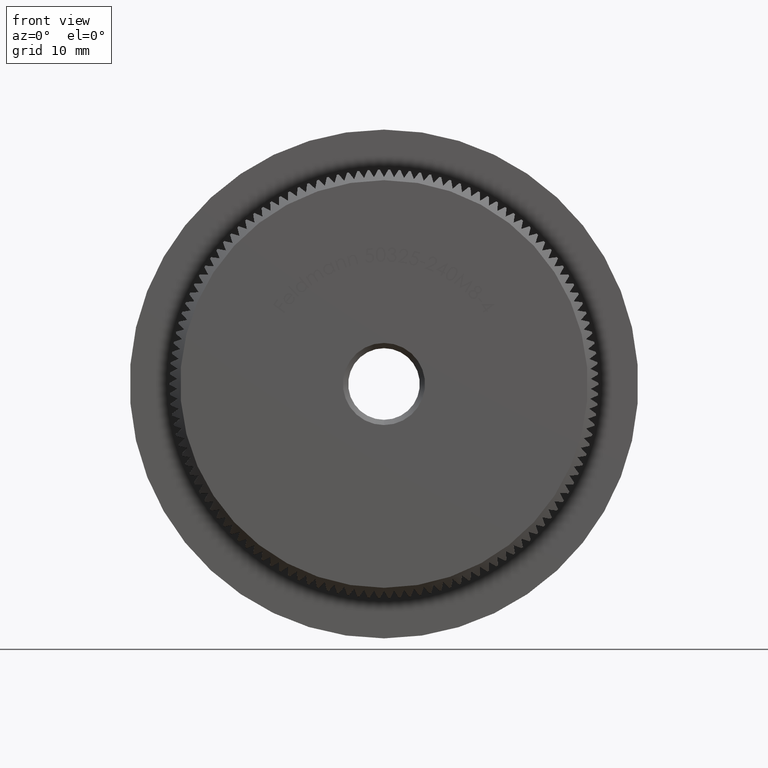
[diagram: clean part render]
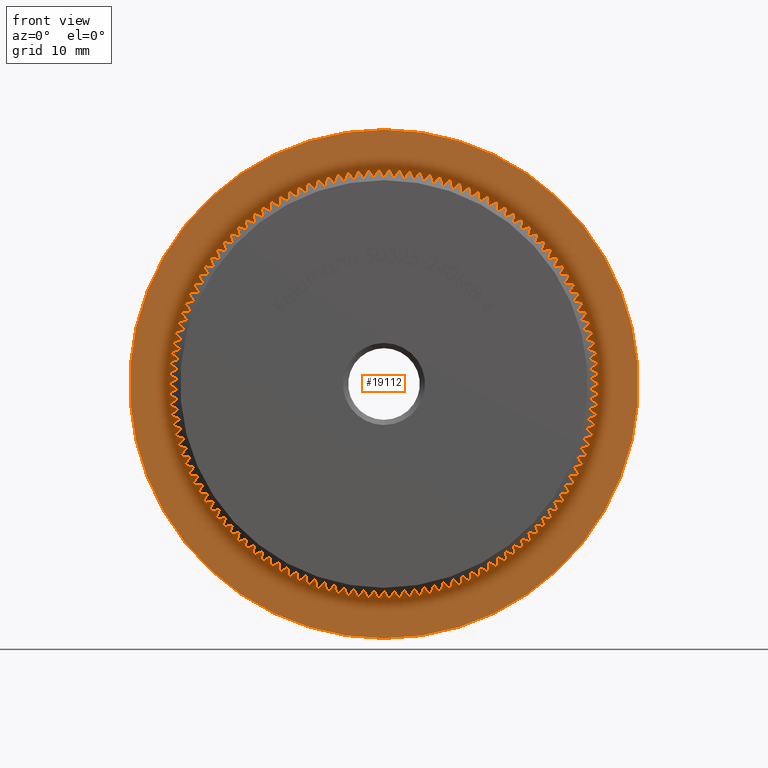
[diagram: same view with one face highlighted and labeled with its STEP entity id]
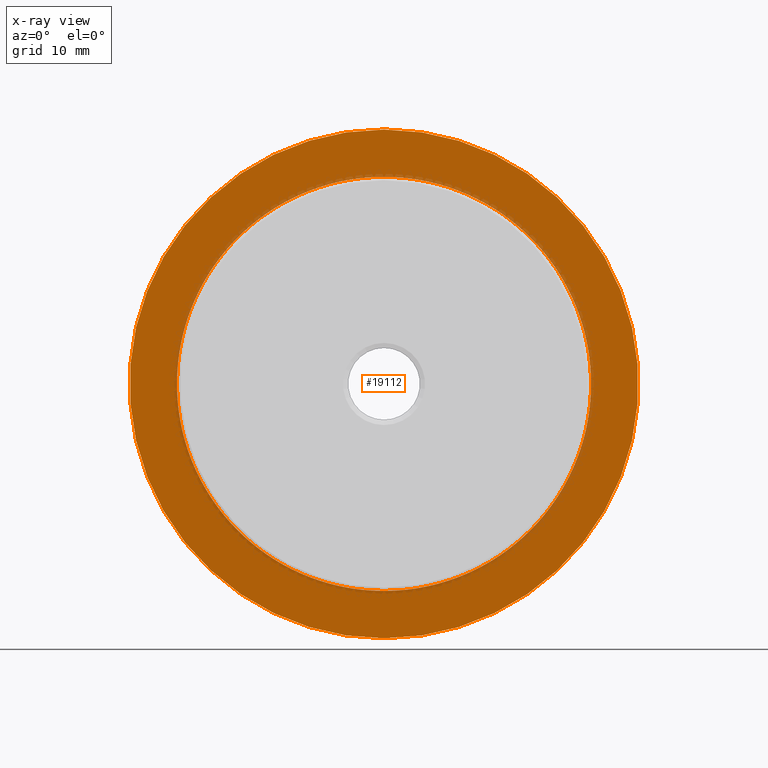
[diagram: x-ray of the same camera — body ghosted, the highlighted face saturated]
A machine part, front view. The second image highlights one B-rep face of the part: STEP entity #19112.
The next image is the same camera in x-ray: the body ghosted, the highlighted face saturated — about 5% of this face is hidden behind the body in this view.
In plain terms, the highlighted planar face has unit normal (0, -1, -0).
Its self-contained STEP definition (entity closure, byte-faithful):
#7 = DIRECTION ( 'NONE',  ( -0.0000000000000000000, -1.000000000000000000, -0.0000000000000000000 ) ) ;
#31 = DIRECTION ( 'NONE',  ( -0.0000000000000000000, -1.000000000000000000, -0.0000000000000000000 ) ) ;
#37 = CARTESIAN_POINT ( 'NONE',  ( 16.69204492513776500, 8.000000000000000000, 10.36813079668571000 ) ) ;
#56 = CARTESIAN_POINT ( 'NONE',  ( 0.0000000000000000000, 8.000000000000000000, 0.0000000000000000000 ) ) ;
#96 = ORIENTED_EDGE ( 'NONE', *, *, #13535, .F. ) ;
#98 = AXIS2_PLACEMENT_3D ( 'NONE', #15070, #416, #10016 ) ;
#110 = DIRECTION ( 'NONE',  ( 0.0000000000000000000, 0.0000000000000000000, -1.000000000000000000 ) ) ;
#134 = CARTESIAN_POINT ( 'NONE',  ( 0.0000000000000000000, 8.000000000000000000, 0.0000000000000000000 ) ) ;
#145 = DIRECTION ( 'NONE',  ( 0.0000000000000000000, 0.0000000000000000000, -1.000000000000000000 ) ) ;
#173 = DIRECTION ( 'NONE',  ( -0.0000000000000000000, -1.000000000000000000, -0.0000000000000000000 ) ) ;
#201 = AXIS2_PLACEMENT_3D ( 'NONE', #1556, #31289, #4006 ) ;
#219 = DIRECTION ( 'NONE',  ( -0.0000000000000000000, -1.000000000000000000, -0.0000000000000000000 ) ) ;
#242 = AXIS2_PLACEMENT_3D ( 'NONE', #27855, #25361, #30539 ) ;
#276 = EDGE_CURVE ( 'NONE', #9599, #12660, #1651, .T. ) ;
#305 = CIRCLE ( 'NONE', #14681, 19.65000000000000200 ) ;
#307 = CIRCLE ( 'NONE', #7731, 19.65000000000000200 ) ;
#318 = VERTEX_POINT ( 'NONE', #344 ) ;
#322 = DIRECTION ( 'NONE',  ( -0.0000000000000000000, -1.000000000000000000, -0.0000000000000000000 ) ) ;
#344 = CARTESIAN_POINT ( 'NONE',  ( -13.72574832714153600, 8.000000000000000000, -14.06151957862205200 ) ) ;
#392 = CARTESIAN_POINT ( 'NONE',  ( 0.0000000000000000000, 8.000000000000000000, 0.0000000000000000000 ) ) ;
#401 = DIRECTION ( 'NONE',  ( 0.0000000000000000000, 0.0000000000000000000, -1.000000000000000000 ) ) ;
#416 = DIRECTION ( 'NONE',  ( -0.0000000000000000000, -1.000000000000000000, -0.0000000000000000000 ) ) ;
#468 = EDGE_CURVE ( 'NONE', #20610, #977, #13902, .T. ) ;
#511 = DIRECTION ( 'NONE',  ( 0.0000000000000000000, 0.0000000000000000000, -1.000000000000000000 ) ) ;
#527 = AXIS2_PLACEMENT_3D ( 'NONE', #1382, #6293, #25547 ) ;
#618 = VERTEX_POINT ( 'NONE', #1711 ) ;
#676 = VERTEX_POINT ( 'NONE', #23832 ) ;
#688 = VERTEX_POINT ( 'NONE', #1816 ) ;
#729 = CARTESIAN_POINT ( 'NONE',  ( -19.64426247667579500, 8.000000000000000000, -0.4748175938900695600 ) ) ;
#755 = DIRECTION ( 'NONE',  ( -0.0000000000000000000, -1.000000000000000000, -0.0000000000000000000 ) ) ;
#813 = CARTESIAN_POINT ( 'NONE',  ( -3.775289996000245300, 8.000000000000000000, -19.28392297863949900 ) ) ;
#822 = ORIENTED_EDGE ( 'NONE', *, *, #468, .F. ) ;
#865 = CARTESIAN_POINT ( 'NONE',  ( -10.76844576951917000, 8.000000000000000000, -16.43663821190102000 ) ) ;
#920 = CARTESIAN_POINT ( 'NONE',  ( 11.54998020754722900, 8.000000000000000000, -15.89718393946762000 ) ) ;
#922 = CARTESIAN_POINT ( 'NONE',  ( 0.0000000000000000000, 8.000000000000000000, 0.0000000000000000000 ) ) ;
#926 = CARTESIAN_POINT ( 'NONE',  ( 5.618832580534391500, 8.000000000000000000, -18.82953054199507300 ) ) ;
#948 = AXIS2_PLACEMENT_3D ( 'NONE', #2378, #219, #2698 ) ;
#977 = VERTEX_POINT ( 'NONE', #15909 ) ;
#999 = AXIS2_PLACEMENT_3D ( 'NONE', #7920, #30212, #5486 ) ;
#1014 = VERTEX_POINT ( 'NONE', #22960 ) ;
#1038 = AXIS2_PLACEMENT_3D ( 'NONE', #11725, #9143, #4668 ) ;
#1054 = DIRECTION ( 'NONE',  ( -0.0000000000000000000, -1.000000000000000000, -0.0000000000000000000 ) ) ;
#1061 = DIRECTION ( 'NONE',  ( -0.0000000000000000000, -1.000000000000000000, -0.0000000000000000000 ) ) ;
#1069 = CARTESIAN_POINT ( 'NONE',  ( 0.0000000000000000000, 8.000000000000000000, 0.0000000000000000000 ) ) ;
#1070 = EDGE_CURVE ( 'NONE', #17694, #318, #24941, .T. ) ;
#1091 = EDGE_LOOP ( 'NONE', ( #8082 ) ) ;
#1092 = DIRECTION ( 'NONE',  ( 0.0000000000000000000, 0.0000000000000000000, -1.000000000000000000 ) ) ;
#1100 = AXIS2_PLACEMENT_3D ( 'NONE', #26980, #29448, #7278 ) ;
#1117 = CARTESIAN_POINT ( 'NONE',  ( 0.0000000000000000000, 8.000000000000000000, 0.0000000000000000000 ) ) ;
#1118 = EDGE_CURVE ( 'NONE', #29350, #31717, #26108, .T. ) ;
#1192 = DIRECTION ( 'NONE',  ( -0.0000000000000000000, -1.000000000000000000, -0.0000000000000000000 ) ) ;
#1220 = DIRECTION ( 'NONE',  ( 0.0000000000000000000, 0.0000000000000000000, -1.000000000000000000 ) ) ;
#1221 = CARTESIAN_POINT ( 'NONE',  ( 0.0000000000000000000, 8.000000000000000000, 0.0000000000000000000 ) ) ;
#1247 = CIRCLE ( 'NONE', #20753, 19.65000000000000200 ) ;
#1268 = ORIENTED_EDGE ( 'NONE', *, *, #11746, .F. ) ;
#1329 = CARTESIAN_POINT ( 'NONE',  ( 0.0000000000000000000, 8.000000000000000000, 0.0000000000000000000 ) ) ;
#1338 = CIRCLE ( 'NONE', #1038, 19.65000000000000200 ) ;
#1342 = EDGE_CURVE ( 'NONE', #3928, #30466, #24186, .T. ) ;
#1344 = DIRECTION ( 'NONE',  ( 0.0000000000000000000, 0.0000000000000000000, -1.000000000000000000 ) ) ;
#1357 = CARTESIAN_POINT ( 'NONE',  ( -19.59838239143779500, 8.000000000000000000, -1.423343823178703000 ) ) ;
#1382 = CARTESIAN_POINT ( 'NONE',  ( 0.0000000000000000000, 8.000000000000000000, 0.0000000000000000000 ) ) ;
#1414 = VERTEX_POINT ( 'NONE', #10324 ) ;
#1456 = VERTEX_POINT ( 'NONE', #13544 ) ;
#1472 = CIRCLE ( 'NONE', #948, 19.65000000000000200 ) ;
#1501 = CIRCLE ( 'NONE', #13640, 19.65000000000000200 ) ;
#1527 = EDGE_CURVE ( 'NONE', #9633, #24445, #28782, .T. ) ;
#1556 = CARTESIAN_POINT ( 'NONE',  ( 0.0000000000000000000, 8.000000000000000000, 0.0000000000000000000 ) ) ;
#1643 = EDGE_CURVE ( 'NONE', #19047, #29350, #29590, .T. ) ;
#1651 = CIRCLE ( 'NONE', #10918, 19.65000000000000200 ) ;
#1662 = CIRCLE ( 'NONE', #26302, 19.65000000000000200 ) ;
#1704 = VERTEX_POINT ( 'NONE', #15130 ) ;
#1711 = CARTESIAN_POINT ( 'NONE',  ( 17.17347184111096700, 8.000000000000000000, 9.549574070217415700 ) ) ;
#1732 = CIRCLE ( 'NONE', #21310, 19.65000000000000200 ) ;
#1760 = CARTESIAN_POINT ( 'NONE',  ( 0.0000000000000000000, 8.000000000000000000, 0.0000000000000000000 ) ) ;
#1816 = CARTESIAN_POINT ( 'NONE',  ( 19.64426247667578800, 8.000000000000000000, 0.4748175938902066100 ) ) ;
#1833 = DIRECTION ( 'NONE',  ( -0.0000000000000000000, -1.000000000000000000, -0.0000000000000000000 ) ) ;
#1835 = AXIS2_PLACEMENT_3D ( 'NONE', #10484, #30100, #7825 ) ;
#1870 = CARTESIAN_POINT ( 'NONE',  ( 19.36951749030690500, 8.000000000000000000, 3.308215862469519500 ) ) ;
#1901 = CARTESIAN_POINT ( 'NONE',  ( -0.9493579076762164200, 8.000000000000000000, 19.62705325725522300 ) ) ;
#1903 = CARTESIAN_POINT ( 'NONE',  ( 15.01880390872603000, 8.000000000000000000, -12.67114948026562600 ) ) ;
#1939 = ORIENTED_EDGE ( 'NONE', *, *, #12132, .F. ) ;
#1967 = DIRECTION ( 'NONE',  ( -0.0000000000000000000, -1.000000000000000000, -0.0000000000000000000 ) ) ;
#1974 = EDGE_CURVE ( 'NONE', #1014, #3902, #8499, .T. ) ;
#2040 = CARTESIAN_POINT ( 'NONE',  ( 0.9493579076759424100, 8.000000000000000000, 19.62705325725523400 ) ) ;
#2053 = CARTESIAN_POINT ( 'NONE',  ( 0.0000000000000000000, 8.000000000000000000, 0.0000000000000000000 ) ) ;
#2066 = DIRECTION ( 'NONE',  ( 0.0000000000000000000, 0.0000000000000000000, -1.000000000000000000 ) ) ;
#2101 = CIRCLE ( 'NONE', #26062, 19.65000000000000200 ) ;
#2119 = VERTEX_POINT ( 'NONE', #26233 ) ;
#2136 = CARTESIAN_POINT ( 'NONE',  ( 0.0000000000000000000, 8.000000000000000000, 0.0000000000000000000 ) ) ;
#2148 = VERTEX_POINT ( 'NONE', #2702 ) ;
#2163 = CARTESIAN_POINT ( 'NONE',  ( 0.0000000000000000000, 8.000000000000000000, 19.65000000000000200 ) ) ;
#2169 = AXIS2_PLACEMENT_3D ( 'NONE', #5214, #27257, #401 ) ;
#2205 = DIRECTION ( 'NONE',  ( -0.0000000000000000000, -1.000000000000000000, -0.0000000000000000000 ) ) ;
#2283 = CARTESIAN_POINT ( 'NONE',  ( 0.0000000000000000000, 8.000000000000000000, -24.14999999999999500 ) ) ;
#2301 = EDGE_CURVE ( 'NONE', #31717, #4820, #27433, .T. ) ;
#2350 = DIRECTION ( 'NONE',  ( 0.0000000000000000000, 0.0000000000000000000, -1.000000000000000000 ) ) ;
#2378 = CARTESIAN_POINT ( 'NONE',  ( 0.0000000000000000000, 8.000000000000000000, 0.0000000000000000000 ) ) ;
#2413 = VERTEX_POINT ( 'NONE', #13571 ) ;
#2480 = CARTESIAN_POINT ( 'NONE',  ( 0.0000000000000000000, 8.000000000000000000, 0.0000000000000000000 ) ) ;
#2524 = DIRECTION ( 'NONE',  ( 0.0000000000000000000, 0.0000000000000000000, -1.000000000000000000 ) ) ;
#2598 = AXIS2_PLACEMENT_3D ( 'NONE', #26403, #24026, #31346 ) ;
#2698 = DIRECTION ( 'NONE',  ( 0.0000000000000000000, 0.0000000000000000000, -1.000000000000000000 ) ) ;
#2702 = CARTESIAN_POINT ( 'NONE',  ( 13.72574832714144800, 8.000000000000000000, 14.06151957862214100 ) ) ;
#2706 = CARTESIAN_POINT ( 'NONE',  ( 0.0000000000000000000, 8.000000000000000000, 0.0000000000000000000 ) ) ;
#2710 = CIRCLE ( 'NONE', #24260, 19.65000000000000200 ) ;
#2728 = EDGE_CURVE ( 'NONE', #25538, #15602, #14443, .T. ) ;
#2750 = AXIS2_PLACEMENT_3D ( 'NONE', #15373, #20401, #7867 ) ;
#2755 = ORIENTED_EDGE ( 'NONE', *, *, #16671, .F. ) ;
#2770 = EDGE_CURVE ( 'NONE', #8368, #19502, #20193, .T. ) ;
#2809 = DIRECTION ( 'NONE',  ( 0.0000000000000000000, 0.0000000000000000000, -1.000000000000000000 ) ) ;
#2827 = CARTESIAN_POINT ( 'NONE',  ( 0.0000000000000000000, 8.000000000000000000, 0.0000000000000000000 ) ) ;
#2833 = DIRECTION ( 'NONE',  ( 0.0000000000000000000, 0.0000000000000000000, -1.000000000000000000 ) ) ;
#2869 = CIRCLE ( 'NONE', #19292, 19.65000000000000200 ) ;
#2877 = ORIENTED_EDGE ( 'NONE', *, *, #6971, .F. ) ;
#2907 = EDGE_CURVE ( 'NONE', #21870, #10414, #23241, .T. ) ;
#2920 = VERTEX_POINT ( 'NONE', #16218 ) ;
#2924 = CARTESIAN_POINT ( 'NONE',  ( 0.0000000000000000000, 8.000000000000000000, -19.65000000000000200 ) ) ;
#2988 = ORIENTED_EDGE ( 'NONE', *, *, #3420, .F. ) ;
#3044 = CIRCLE ( 'NONE', #6476, 19.65000000000000200 ) ;
#3080 = ORIENTED_EDGE ( 'NONE', *, *, #24235, .F. ) ;
#3110 = AXIS2_PLACEMENT_3D ( 'NONE', #16352, #13476, #28553 ) ;
#3127 = EDGE_CURVE ( 'NONE', #5208, #10161, #6393, .T. ) ;
#3136 = EDGE_CURVE ( 'NONE', #14687, #28413, #5276, .T. ) ;
#3159 = VERTEX_POINT ( 'NONE', #17681 ) ;
#3176 = CIRCLE ( 'NONE', #14810, 19.65000000000000200 ) ;
#3222 = CARTESIAN_POINT ( 'NONE',  ( 0.0000000000000000000, 8.000000000000000000, 0.0000000000000000000 ) ) ;
#3235 = DIRECTION ( 'NONE',  ( -0.0000000000000000000, -1.000000000000000000, -0.0000000000000000000 ) ) ;
#3273 = DIRECTION ( 'NONE',  ( 0.0000000000000000000, 0.0000000000000000000, -1.000000000000000000 ) ) ;
#3277 = AXIS2_PLACEMENT_3D ( 'NONE', #20697, #23154, #10961 ) ;
#3320 = EDGE_CURVE ( 'NONE', #27923, #22451, #25511, .T. ) ;
#3322 = CIRCLE ( 'NONE', #14765, 19.65000000000000200 ) ;
#3368 = DIRECTION ( 'NONE',  ( 0.0000000000000000000, 0.0000000000000000000, -1.000000000000000000 ) ) ;
#3372 = CARTESIAN_POINT ( 'NONE',  ( 0.0000000000000000000, 8.000000000000000000, 0.0000000000000000000 ) ) ;
#3374 = CIRCLE ( 'NONE', #17169, 19.65000000000000200 ) ;
#3385 = AXIS2_PLACEMENT_3D ( 'NONE', #21652, #14600, #19326 ) ;
#3407 = CARTESIAN_POINT ( 'NONE',  ( -19.64426247667579500, 8.000000000000000000, 0.4748175938899322200 ) ) ;
#3417 = VERTEX_POINT ( 'NONE', #28480 ) ;
#3420 = EDGE_CURVE ( 'NONE', #10233, #8368, #27437, .T. ) ;
#3462 = DIRECTION ( 'NONE',  ( 0.0000000000000000000, 0.0000000000000000000, -1.000000000000000000 ) ) ;
#3528 = ORIENTED_EDGE ( 'NONE', *, *, #24560, .F. ) ;
#3532 = DIRECTION ( 'NONE',  ( 0.0000000000000000000, 0.0000000000000000000, -1.000000000000000000 ) ) ;
#3554 = CARTESIAN_POINT ( 'NONE',  ( -0.9493579076760798600, 8.000000000000000000, -19.62705325725523100 ) ) ;
#3577 = CIRCLE ( 'NONE', #25425, 19.65000000000000200 ) ;
#3581 = DIRECTION ( 'NONE',  ( -0.0000000000000000000, -1.000000000000000000, -0.0000000000000000000 ) ) ;
#3586 = CIRCLE ( 'NONE', #15181, 19.65000000000000200 ) ;
#3589 = CARTESIAN_POINT ( 'NONE',  ( -6.521989313975597100, 8.000000000000000000, 18.53607713051464500 ) ) ;
#3599 = CIRCLE ( 'NONE', #27904, 19.65000000000000200 ) ;
#3623 = DIRECTION ( 'NONE',  ( -0.0000000000000000000, -1.000000000000000000, -0.0000000000000000000 ) ) ;
#3633 = CARTESIAN_POINT ( 'NONE',  ( -18.37306916876837400, 8.000000000000000000, -6.967986030385903400 ) ) ;
#3677 = DIRECTION ( 'NONE',  ( -0.0000000000000000000, -1.000000000000000000, -0.0000000000000000000 ) ) ;
#3744 = ORIENTED_EDGE ( 'NONE', *, *, #7928, .F. ) ;
#3746 = DIRECTION ( 'NONE',  ( 0.0000000000000000000, 0.0000000000000000000, -1.000000000000000000 ) ) ;
#3788 = VERTEX_POINT ( 'NONE', #24440 ) ;
#3855 = AXIS2_PLACEMENT_3D ( 'NONE', #30520, #28265, #3974 ) ;
#3859 = CARTESIAN_POINT ( 'NONE',  ( 7.409913639175635500, 8.000000000000000000, -18.19933185202025100 ) ) ;
#3897 = DIRECTION ( 'NONE',  ( 0.0000000000000000000, 0.0000000000000000000, -1.000000000000000000 ) ) ;
#3902 = VERTEX_POINT ( 'NONE', #28000 ) ;
#3908 = VERTEX_POINT ( 'NONE', #926 ) ;
#3911 = CARTESIAN_POINT ( 'NONE',  ( 19.18706719899514800, 8.000000000000000000, 4.240159466487603400 ) ) ;
#3928 = VERTEX_POINT ( 'NONE', #7650 ) ;
#3941 = DIRECTION ( 'NONE',  ( -0.0000000000000000000, -1.000000000000000000, -0.0000000000000000000 ) ) ;
#3970 = CARTESIAN_POINT ( 'NONE',  ( -6.521989313975471900, 8.000000000000000000, -18.53607713051469500 ) ) ;
#3973 = EDGE_CURVE ( 'NONE', #5412, #31421, #9788, .T. ) ;
#3974 = DIRECTION ( 'NONE',  ( 0.0000000000000000000, 0.0000000000000000000, -1.000000000000000000 ) ) ;
#4004 = CIRCLE ( 'NONE', #3110, 19.65000000000000200 ) ;
#4006 = DIRECTION ( 'NONE',  ( 0.0000000000000000000, 0.0000000000000000000, -1.000000000000000000 ) ) ;
#4043 = DIRECTION ( 'NONE',  ( -0.0000000000000000000, -1.000000000000000000, -0.0000000000000000000 ) ) ;
#4069 = EDGE_CURVE ( 'NONE', #16038, #19866, #31662, .T. ) ;
#4074 = EDGE_CURVE ( 'NONE', #28339, #8860, #25897, .T. ) ;
#4103 = DIRECTION ( 'NONE',  ( 0.0000000000000000000, 0.0000000000000000000, -1.000000000000000000 ) ) ;
#4159 = CARTESIAN_POINT ( 'NONE',  ( 16.69204492513798500, 8.000000000000000000, -10.36813079668535800 ) ) ;
#4175 = ORIENTED_EDGE ( 'NONE', *, *, #29946, .F. ) ;
#4199 = CARTESIAN_POINT ( 'NONE',  ( 0.0000000000000000000, 8.000000000000000000, 0.0000000000000000000 ) ) ;
#4202 = CARTESIAN_POINT ( 'NONE',  ( 0.0000000000000000000, 8.000000000000000000, 0.0000000000000000000 ) ) ;
#4241 = ORIENTED_EDGE ( 'NONE', *, *, #17191, .F. ) ;
#4376 = AXIS2_PLACEMENT_3D ( 'NONE', #24311, #9567, #12150 ) ;
#4395 = EDGE_CURVE ( 'NONE', #27515, #13235, #11307, .T. ) ;
#4485 = DIRECTION ( 'NONE',  ( 0.0000000000000000000, 0.0000000000000000000, -1.000000000000000000 ) ) ;
#4504 = AXIS2_PLACEMENT_3D ( 'NONE', #25708, #28083, #28294 ) ;
#4545 = CIRCLE ( 'NONE', #2598, 19.65000000000000200 ) ;
#4592 = CIRCLE ( 'NONE', #98, 19.65000000000000200 ) ;
#4648 = VERTEX_POINT ( 'NONE', #12646 ) ;
#4668 = DIRECTION ( 'NONE',  ( 0.0000000000000000000, 0.0000000000000000000, -1.000000000000000000 ) ) ;
#4670 = ORIENTED_EDGE ( 'NONE', *, *, #1342, .F. ) ;
#4741 = VERTEX_POINT ( 'NONE', #865 ) ;
#4767 = CARTESIAN_POINT ( 'NONE',  ( -4.702552803250520200, 8.000000000000000000, 19.07900671242191800 ) ) ;
#4820 = VERTEX_POINT ( 'NONE', #8647 ) ;
#4844 = CARTESIAN_POINT ( 'NONE',  ( 0.0000000000000000000, 8.000000000000000000, 0.0000000000000000000 ) ) ;
#4851 = CARTESIAN_POINT ( 'NONE',  ( 6.521989313975731200, 8.000000000000000000, -18.53607713051460200 ) ) ;
#4870 = VERTEX_POINT ( 'NONE', #31046 ) ;
#4906 = CIRCLE ( 'NONE', #2169, 19.65000000000000200 ) ;
#4947 = DIRECTION ( 'NONE',  ( 0.0000000000000000000, 0.0000000000000000000, -1.000000000000000000 ) ) ;
#4984 = AXIS2_PLACEMENT_3D ( 'NONE', #134, #15005, #19709 ) ;
#5078 = VERTEX_POINT ( 'NONE', #3407 ) ;
#5113 = CARTESIAN_POINT ( 'NONE',  ( 0.0000000000000000000, 8.000000000000000000, 0.0000000000000000000 ) ) ;
#5130 = ORIENTED_EDGE ( 'NONE', *, *, #22614, .F. ) ;
#5149 = EDGE_CURVE ( 'NONE', #18394, #19135, #15124, .T. ) ;
#5151 = CARTESIAN_POINT ( 'NONE',  ( 0.0000000000000000000, 8.000000000000000000, 0.0000000000000000000 ) ) ;
#5156 = DIRECTION ( 'NONE',  ( -0.0000000000000000000, -1.000000000000000000, -0.0000000000000000000 ) ) ;
#5208 = VERTEX_POINT ( 'NONE', #16238 ) ;
#5213 = DIRECTION ( 'NONE',  ( -0.0000000000000000000, -1.000000000000000000, -0.0000000000000000000 ) ) ;
#5214 = CARTESIAN_POINT ( 'NONE',  ( 0.0000000000000000000, 8.000000000000000000, 0.0000000000000000000 ) ) ;
#5220 = EDGE_CURVE ( 'NONE', #4870, #16038, #1338, .T. ) ;
#5227 = DIRECTION ( 'NONE',  ( 0.0000000000000000000, 0.0000000000000000000, -1.000000000000000000 ) ) ;
#5229 = CIRCLE ( 'NONE', #18229, 19.65000000000000200 ) ;
#5256 = ORIENTED_EDGE ( 'NONE', *, *, #6302, .F. ) ;
#5276 = CIRCLE ( 'NONE', #15557, 19.65000000000000200 ) ;
#5292 = CIRCLE ( 'NONE', #30104, 19.65000000000000200 ) ;
#5300 = EDGE_CURVE ( 'NONE', #2148, #3928, #13580, .T. ) ;
#5331 = CIRCLE ( 'NONE', #26161, 19.65000000000000200 ) ;
#5367 = DIRECTION ( 'NONE',  ( 0.0000000000000000000, 0.0000000000000000000, -1.000000000000000000 ) ) ;
#5384 = EDGE_CURVE ( 'NONE', #11114, #23002, #17781, .T. ) ;
#5388 = CARTESIAN_POINT ( 'NONE',  ( 0.0000000000000000000, 8.000000000000000000, 0.0000000000000000000 ) ) ;
#5412 = VERTEX_POINT ( 'NONE', #19966 ) ;
#5431 = VERTEX_POINT ( 'NONE', #14826 ) ;
#5450 = CARTESIAN_POINT ( 'NONE',  ( 0.0000000000000000000, 8.000000000000000000, 0.0000000000000000000 ) ) ;
#5453 = DIRECTION ( 'NONE',  ( -0.0000000000000000000, -1.000000000000000000, -0.0000000000000000000 ) ) ;
#5473 = ORIENTED_EDGE ( 'NONE', *, *, #5568, .F. ) ;
#5486 = DIRECTION ( 'NONE',  ( 0.0000000000000000000, 0.0000000000000000000, -1.000000000000000000 ) ) ;
#5497 = AXIS2_PLACEMENT_3D ( 'NONE', #7037, #26830, #2350 ) ;
#5511 = VERTEX_POINT ( 'NONE', #24957 ) ;
#5516 = EDGE_CURVE ( 'NONE', #28434, #22987, #25408, .T. ) ;
#5568 = EDGE_CURVE ( 'NONE', #1456, #27515, #18151, .T. ) ;
#5604 = EDGE_CURVE ( 'NONE', #17644, #8268, #22357, .T. ) ;
#5676 = ORIENTED_EDGE ( 'NONE', *, *, #8588, .F. ) ;
#5686 = DIRECTION ( 'NONE',  ( -0.0000000000000000000, -1.000000000000000000, -0.0000000000000000000 ) ) ;
#5689 = ORIENTED_EDGE ( 'NONE', *, *, #15273, .F. ) ;
#5698 = CARTESIAN_POINT ( 'NONE',  ( 0.0000000000000000000, 8.000000000000000000, 0.0000000000000000000 ) ) ;
#5728 = CARTESIAN_POINT ( 'NONE',  ( 0.0000000000000000000, 8.000000000000000000, 0.0000000000000000000 ) ) ;
#5731 = AXIS2_PLACEMENT_3D ( 'NONE', #21306, #26148, #3897 ) ;
#5746 = ORIENTED_EDGE ( 'NONE', *, *, #18125, .F. ) ;
#5778 = AXIS2_PLACEMENT_3D ( 'NONE', #15447, #27556, #22394 ) ;
#5792 = CARTESIAN_POINT ( 'NONE',  ( 0.0000000000000000000, 8.000000000000000000, 0.0000000000000000000 ) ) ;
#5795 = DIRECTION ( 'NONE',  ( 0.0000000000000000000, 0.0000000000000000000, -1.000000000000000000 ) ) ;
#5869 = ORIENTED_EDGE ( 'NONE', *, *, #28346, .F. ) ;
#5872 = AXIS2_PLACEMENT_3D ( 'NONE', #20982, #30967, #16076 ) ;
#5888 = DIRECTION ( 'NONE',  ( 0.0000000000000000000, 0.0000000000000000000, -1.000000000000000000 ) ) ;
#5908 = CIRCLE ( 'NONE', #28125, 19.65000000000000200 ) ;
#5960 = CIRCLE ( 'NONE', #201, 19.65000000000000200 ) ;
#5963 = CIRCLE ( 'NONE', #16418, 19.65000000000000200 ) ;
#6009 = CARTESIAN_POINT ( 'NONE',  ( 0.0000000000000000000, 8.000000000000000000, 0.0000000000000000000 ) ) ;
#6040 = CARTESIAN_POINT ( 'NONE',  ( 0.0000000000000000000, 8.000000000000000000, 0.0000000000000000000 ) ) ;
#6065 = DIRECTION ( 'NONE',  ( 0.0000000000000000000, 0.0000000000000000000, -1.000000000000000000 ) ) ;
#6120 = ORIENTED_EDGE ( 'NONE', *, *, #24334, .F. ) ;
#6158 = CARTESIAN_POINT ( 'NONE',  ( 19.59838239143781300, 8.000000000000000000, -1.423343823178429200 ) ) ;
#6289 = DIRECTION ( 'NONE',  ( 0.0000000000000000000, 0.0000000000000000000, -1.000000000000000000 ) ) ;
#6293 = DIRECTION ( 'NONE',  ( -0.0000000000000000000, -1.000000000000000000, -0.0000000000000000000 ) ) ;
#6302 = EDGE_CURVE ( 'NONE', #12679, #9599, #3586, .T. ) ;
#6342 = CIRCLE ( 'NONE', #30108, 19.65000000000000200 ) ;
#6386 = DIRECTION ( 'NONE',  ( -0.0000000000000000000, -1.000000000000000000, -0.0000000000000000000 ) ) ;
#6393 = CIRCLE ( 'NONE', #1835, 19.65000000000000200 ) ;
#6430 = EDGE_CURVE ( 'NONE', #977, #4870, #30405, .T. ) ;
#6434 = CARTESIAN_POINT ( 'NONE',  ( -19.36951749030695400, 8.000000000000000000, 3.308215862469249900 ) ) ;
#6462 = EDGE_CURVE ( 'NONE', #28888, #30259, #11621, .T. ) ;
#6476 = AXIS2_PLACEMENT_3D ( 'NONE', #5728, #23368, #16003 ) ;
#6481 = VERTEX_POINT ( 'NONE', #29661 ) ;
#6562 = DIRECTION ( 'NONE',  ( 0.0000000000000000000, 0.0000000000000000000, -1.000000000000000000 ) ) ;
#6564 = VERTEX_POINT ( 'NONE', #7811 ) ;
#6571 = ORIENTED_EDGE ( 'NONE', *, *, #24788, .F. ) ;
#6573 = CARTESIAN_POINT ( 'NONE',  ( -19.50672937602675100, 8.000000000000000000, -2.368545767017172600 ) ) ;
#6594 = ORIENTED_EDGE ( 'NONE', *, *, #14610, .F. ) ;
#6651 = CARTESIAN_POINT ( 'NONE',  ( 0.0000000000000000000, 8.000000000000000000, 0.0000000000000000000 ) ) ;
#6659 = DIRECTION ( 'NONE',  ( -0.0000000000000000000, -1.000000000000000000, -0.0000000000000000000 ) ) ;
#6660 = DIRECTION ( 'NONE',  ( -0.0000000000000000000, -1.000000000000000000, -0.0000000000000000000 ) ) ;
#6767 = CIRCLE ( 'NONE', #11010, 19.65000000000000200 ) ;
#6785 = CARTESIAN_POINT ( 'NONE',  ( -11.54998020754700900, 8.000000000000000000, -15.89718393946778400 ) ) ;
#6806 = DIRECTION ( 'NONE',  ( -0.0000000000000000000, -1.000000000000000000, -0.0000000000000000000 ) ) ;
#6811 = DIRECTION ( 'NONE',  ( -0.0000000000000000000, -1.000000000000000000, -0.0000000000000000000 ) ) ;
#6868 = EDGE_CURVE ( 'NONE', #2413, #1456, #26154, .T. ) ;
#6875 = CARTESIAN_POINT ( 'NONE',  ( 4.702552803250656900, 8.000000000000000000, -19.07900671242188700 ) ) ;
#6878 = CARTESIAN_POINT ( 'NONE',  ( 0.0000000000000000000, 8.000000000000000000, 0.0000000000000000000 ) ) ;
#6890 = AXIS2_PLACEMENT_3D ( 'NONE', #6651, #8987, #28587 ) ;
#6909 = CARTESIAN_POINT ( 'NONE',  ( 0.0000000000000000000, 8.000000000000000000, 0.0000000000000000000 ) ) ;
#6918 = EDGE_CURVE ( 'NONE', #4820, #5208, #28459, .T. ) ;
#6951 = ORIENTED_EDGE ( 'NONE', *, *, #28621, .F. ) ;
#6971 = EDGE_CURVE ( 'NONE', #27304, #23776, #1662, .T. ) ;
#6978 = DIRECTION ( 'NONE',  ( 0.0000000000000000000, 0.0000000000000000000, -1.000000000000000000 ) ) ;
#7036 = AXIS2_PLACEMENT_3D ( 'NONE', #24603, #6659, #16503 ) ;
#7037 = CARTESIAN_POINT ( 'NONE',  ( 0.0000000000000000000, 8.000000000000000000, 0.0000000000000000000 ) ) ;
#7101 = EDGE_CURVE ( 'NONE', #1704, #12819, #20402, .T. ) ;
#7135 = ORIENTED_EDGE ( 'NONE', *, *, #7621, .F. ) ;
#7260 = DIRECTION ( 'NONE',  ( -0.0000000000000000000, -1.000000000000000000, -0.0000000000000000000 ) ) ;
#7268 = CARTESIAN_POINT ( 'NONE',  ( 13.72574832714173500, 8.000000000000000000, -14.06151957862186000 ) ) ;
#7278 = DIRECTION ( 'NONE',  ( 0.0000000000000000000, 0.0000000000000000000, -1.000000000000000000 ) ) ;
#7291 = ORIENTED_EDGE ( 'NONE', *, *, #12608, .F. ) ;
#7324 = EDGE_CURVE ( 'NONE', #10161, #17078, #29963, .T. ) ;
#7363 = DIRECTION ( 'NONE',  ( 0.0000000000000000000, 0.0000000000000000000, -1.000000000000000000 ) ) ;
#7395 = DIRECTION ( 'NONE',  ( 0.0000000000000000000, 0.0000000000000000000, -1.000000000000000000 ) ) ;
#7434 = AXIS2_PLACEMENT_3D ( 'NONE', #21170, #8751, #8646 ) ;
#7485 = VERTEX_POINT ( 'NONE', #24624 ) ;
#7539 = ORIENTED_EDGE ( 'NONE', *, *, #24006, .F. ) ;
#7561 = ORIENTED_EDGE ( 'NONE', *, *, #25806, .F. ) ;
#7574 = ORIENTED_EDGE ( 'NONE', *, *, #2907, .F. ) ;
#7588 = DIRECTION ( 'NONE',  ( 0.0000000000000000000, 0.0000000000000000000, -1.000000000000000000 ) ) ;
#7621 = EDGE_CURVE ( 'NONE', #8860, #18881, #27291, .T. ) ;
#7639 = ORIENTED_EDGE ( 'NONE', *, *, #5384, .F. ) ;
#7647 = DIRECTION ( 'NONE',  ( -0.0000000000000000000, -1.000000000000000000, -0.0000000000000000000 ) ) ;
#7650 = CARTESIAN_POINT ( 'NONE',  ( 13.03036023443145200, 8.000000000000000000, 14.70823620156229200 ) ) ;
#7665 = DIRECTION ( 'NONE',  ( -0.0000000000000000000, -1.000000000000000000, -0.0000000000000000000 ) ) ;
#7674 = AXIS2_PLACEMENT_3D ( 'NONE', #14927, #17388, #17279 ) ;
#7676 = CARTESIAN_POINT ( 'NONE',  ( 0.0000000000000000000, 8.000000000000000000, 0.0000000000000000000 ) ) ;
#7704 = EDGE_CURVE ( 'NONE', #22987, #16513, #7742, .T. ) ;
#7731 = AXIS2_PLACEMENT_3D ( 'NONE', #2706, #17453, #2809 ) ;
#7742 = CIRCLE ( 'NONE', #11973, 19.65000000000000200 ) ;
#7748 = CARTESIAN_POINT ( 'NONE',  ( -13.72574832714163600, 8.000000000000000000, 14.06151957862195600 ) ) ;
#7793 = VERTEX_POINT ( 'NONE', #20877 ) ;
#7811 = CARTESIAN_POINT ( 'NONE',  ( 2.839209824034935300, 8.000000000000000000, 19.44380074921319600 ) ) ;
#7825 = DIRECTION ( 'NONE',  ( 0.0000000000000000000, 0.0000000000000000000, -1.000000000000000000 ) ) ;
#7867 = DIRECTION ( 'NONE',  ( 0.0000000000000000000, 0.0000000000000000000, -1.000000000000000000 ) ) ;
#7891 = EDGE_CURVE ( 'NONE', #24050, #1704, #15010, .T. ) ;
#7920 = CARTESIAN_POINT ( 'NONE',  ( 0.0000000000000000000, 8.000000000000000000, 0.0000000000000000000 ) ) ;
#7922 = CIRCLE ( 'NONE', #20613, 19.65000000000000200 ) ;
#7928 = EDGE_CURVE ( 'NONE', #8556, #16480, #11567, .T. ) ;
#7953 = DIRECTION ( 'NONE',  ( -0.0000000000000000000, -1.000000000000000000, -0.0000000000000000000 ) ) ;
#7983 = CARTESIAN_POINT ( 'NONE',  ( 19.50672937602678700, 8.000000000000000000, -2.368545767016900300 ) ) ;
#8018 = ORIENTED_EDGE ( 'NONE', *, *, #4074, .F. ) ;
#8044 = CIRCLE ( 'NONE', #11775, 19.65000000000000200 ) ;
#8082 = ORIENTED_EDGE ( 'NONE', *, *, #26475, .T. ) ;
#8161 = DIRECTION ( 'NONE',  ( 0.0000000000000000000, 0.0000000000000000000, -1.000000000000000000 ) ) ;
#8197 = DIRECTION ( 'NONE',  ( -0.0000000000000000000, -1.000000000000000000, -0.0000000000000000000 ) ) ;
#8218 = CARTESIAN_POINT ( 'NONE',  ( 0.0000000000000000000, 8.000000000000000000, 0.0000000000000000000 ) ) ;
#8225 = VERTEX_POINT ( 'NONE', #3970 ) ;
#8244 = VERTEX_POINT ( 'NONE', #15524 ) ;
#8268 = VERTEX_POINT ( 'NONE', #3859 ) ;
#8316 = CARTESIAN_POINT ( 'NONE',  ( 0.0000000000000000000, 8.000000000000000000, 0.0000000000000000000 ) ) ;
#8368 = VERTEX_POINT ( 'NONE', #2040 ) ;
#8428 = AXIS2_PLACEMENT_3D ( 'NONE', #26035, #6660, #16291 ) ;
#8447 = VERTEX_POINT ( 'NONE', #10117 ) ;
#8449 = CARTESIAN_POINT ( 'NONE',  ( -5.618832580534127700, 8.000000000000000000, -18.82953054199515100 ) ) ;
#8477 = DIRECTION ( 'NONE',  ( -0.0000000000000000000, -1.000000000000000000, -0.0000000000000000000 ) ) ;
#8489 = VERTEX_POINT ( 'NONE', #27691 ) ;
#8490 = VERTEX_POINT ( 'NONE', #7983 ) ;
#8499 = CIRCLE ( 'NONE', #27423, 19.65000000000000200 ) ;
#8502 = DIRECTION ( 'NONE',  ( 0.0000000000000000000, 0.0000000000000000000, -1.000000000000000000 ) ) ;
#8556 = VERTEX_POINT ( 'NONE', #21208 ) ;
#8573 = CIRCLE ( 'NONE', #16842, 19.65000000000000200 ) ;
#8580 = EDGE_CURVE ( 'NONE', #17078, #8489, #24160, .T. ) ;
#8588 = EDGE_CURVE ( 'NONE', #30259, #10748, #21467, .T. ) ;
#8597 = CARTESIAN_POINT ( 'NONE',  ( 0.0000000000000000000, 8.000000000000000000, 0.0000000000000000000 ) ) ;
#8603 = AXIS2_PLACEMENT_3D ( 'NONE', #392, #7647, #20176 ) ;
#8621 = CARTESIAN_POINT ( 'NONE',  ( 0.0000000000000000000, 8.000000000000000000, 0.0000000000000000000 ) ) ;
#8646 = DIRECTION ( 'NONE',  ( 0.0000000000000000000, 0.0000000000000000000, -1.000000000000000000 ) ) ;
#8647 = CARTESIAN_POINT ( 'NONE',  ( -9.961761127437073400, 8.000000000000000000, 16.93770395419295500 ) ) ;
#8700 = DIRECTION ( 'NONE',  ( -0.0000000000000000000, -1.000000000000000000, -0.0000000000000000000 ) ) ;
#8708 = CARTESIAN_POINT ( 'NONE',  ( 0.0000000000000000000, 8.000000000000000000, 0.0000000000000000000 ) ) ;
#8728 = DIRECTION ( 'NONE',  ( 0.0000000000000000000, 0.0000000000000000000, -1.000000000000000000 ) ) ;
#8729 = EDGE_CURVE ( 'NONE', #3417, #5511, #15745, .T. ) ;
#8751 = DIRECTION ( 'NONE',  ( -0.0000000000000000000, -1.000000000000000000, -0.0000000000000000000 ) ) ;
#8860 = VERTEX_POINT ( 'NONE', #31695 ) ;
#8874 = ORIENTED_EDGE ( 'NONE', *, *, #13726, .F. ) ;
#8900 = ORIENTED_EDGE ( 'NONE', *, *, #29241, .F. ) ;
#8916 = VERTEX_POINT ( 'NONE', #27388 ) ;
#8923 = CIRCLE ( 'NONE', #22428, 19.65000000000000200 ) ;
#8943 = DIRECTION ( 'NONE',  ( 0.0000000000000000000, 0.0000000000000000000, -1.000000000000000000 ) ) ;
#8987 = DIRECTION ( 'NONE',  ( -0.0000000000000000000, -1.000000000000000000, -0.0000000000000000000 ) ) ;
#9054 = DIRECTION ( 'NONE',  ( -0.0000000000000000000, -1.000000000000000000, -0.0000000000000000000 ) ) ;
#9100 = DIRECTION ( 'NONE',  ( -0.0000000000000000000, -1.000000000000000000, -0.0000000000000000000 ) ) ;
#9124 = ORIENTED_EDGE ( 'NONE', *, *, #6868, .F. ) ;
#9143 = DIRECTION ( 'NONE',  ( -0.0000000000000000000, -1.000000000000000000, -0.0000000000000000000 ) ) ;
#9183 = ORIENTED_EDGE ( 'NONE', *, *, #9331, .F. ) ;
#9193 = DIRECTION ( 'NONE',  ( -0.0000000000000000000, -1.000000000000000000, -0.0000000000000000000 ) ) ;
#9200 = CARTESIAN_POINT ( 'NONE',  ( 0.0000000000000000000, 8.000000000000000000, 0.0000000000000000000 ) ) ;
#9290 = CARTESIAN_POINT ( 'NONE',  ( 19.36951749030697600, 8.000000000000000000, -3.308215862469114000 ) ) ;
#9305 = AXIS2_PLACEMENT_3D ( 'NONE', #13371, #10899, #3532 ) ;
#9331 = EDGE_CURVE ( 'NONE', #24445, #5431, #8044, .T. ) ;
#9338 = DIRECTION ( 'NONE',  ( -0.0000000000000000000, -1.000000000000000000, -0.0000000000000000000 ) ) ;
#9359 = CARTESIAN_POINT ( 'NONE',  ( 0.0000000000000000000, 8.000000000000000000, 0.0000000000000000000 ) ) ;
#9398 = DIRECTION ( 'NONE',  ( -0.0000000000000000000, -1.000000000000000000, -0.0000000000000000000 ) ) ;
#9457 = CARTESIAN_POINT ( 'NONE',  ( 0.0000000000000000000, 8.000000000000000000, 0.0000000000000000000 ) ) ;
#9479 = DIRECTION ( 'NONE',  ( 0.0000000000000000000, 0.0000000000000000000, -1.000000000000000000 ) ) ;
#9496 = ORIENTED_EDGE ( 'NONE', *, *, #1070, .F. ) ;
#9544 = CARTESIAN_POINT ( 'NONE',  ( 0.0000000000000000000, 8.000000000000000000, 0.0000000000000000000 ) ) ;
#9567 = DIRECTION ( 'NONE',  ( -0.0000000000000000000, -1.000000000000000000, -0.0000000000000000000 ) ) ;
#9569 = DIRECTION ( 'NONE',  ( 0.0000000000000000000, 0.0000000000000000000, -1.000000000000000000 ) ) ;
#9582 = CARTESIAN_POINT ( 'NONE',  ( -3.775289996000379000, 8.000000000000000000, 19.28392297863947700 ) ) ;
#9599 = VERTEX_POINT ( 'NONE', #1870 ) ;
#9602 = AXIS2_PLACEMENT_3D ( 'NONE', #4844, #17053, #12558 ) ;
#9618 = VERTEX_POINT ( 'NONE', #6573 ) ;
#9633 = VERTEX_POINT ( 'NONE', #37 ) ;
#9652 = DIRECTION ( 'NONE',  ( -0.0000000000000000000, -1.000000000000000000, -0.0000000000000000000 ) ) ;
#9713 = DIRECTION ( 'NONE',  ( -0.0000000000000000000, -1.000000000000000000, -0.0000000000000000000 ) ) ;
#9747 = PLANE ( 'NONE',  #16637 ) ;
#9778 = AXIS2_PLACEMENT_3D ( 'NONE', #6878, #9652, #11922 ) ;
#9785 = AXIS2_PLACEMENT_3D ( 'NONE', #9544, #31, #21741 ) ;
#9788 = CIRCLE ( 'NONE', #28270, 19.65000000000000200 ) ;
#9906 = EDGE_CURVE ( 'NONE', #28918, #8244, #13402, .T. ) ;
#9933 = DIRECTION ( 'NONE',  ( -0.0000000000000000000, -1.000000000000000000, -0.0000000000000000000 ) ) ;
#9948 = EDGE_CURVE ( 'NONE', #2119, #22986, #2710, .T. ) ;
#10016 = DIRECTION ( 'NONE',  ( 0.0000000000000000000, 0.0000000000000000000, -1.000000000000000000 ) ) ;
#10049 = CARTESIAN_POINT ( 'NONE',  ( 0.0000000000000000000, 8.000000000000000000, 0.0000000000000000000 ) ) ;
#10079 = VERTEX_POINT ( 'NONE', #7268 ) ;
#10094 = DIRECTION ( 'NONE',  ( 0.0000000000000000000, 0.0000000000000000000, -1.000000000000000000 ) ) ;
#10117 = CARTESIAN_POINT ( 'NONE',  ( 18.01496663797075100, 8.000000000000000000, 7.847514067066127200 ) ) ;
#10119 = DIRECTION ( 'NONE',  ( -0.0000000000000000000, -1.000000000000000000, -0.0000000000000000000 ) ) ;
#10161 = VERTEX_POINT ( 'NONE', #20118 ) ;
#10166 = VERTEX_POINT ( 'NONE', #10354 ) ;
#10167 = DIRECTION ( 'NONE',  ( -0.0000000000000000000, -1.000000000000000000, -0.0000000000000000000 ) ) ;
#10190 = ORIENTED_EDGE ( 'NONE', *, *, #25746, .F. ) ;
#10228 = DIRECTION ( 'NONE',  ( 0.0000000000000000000, 0.0000000000000000000, -1.000000000000000000 ) ) ;
#10233 = VERTEX_POINT ( 'NONE', #28664 ) ;
#10324 = CARTESIAN_POINT ( 'NONE',  ( -16.69204492513791000, 8.000000000000000000, 10.36813079668547200 ) ) ;
#10341 = EDGE_LOOP ( 'NONE', ( #28175, #2988, #3528, #6951, #28319, #10190, #16145, #16669, #18253, #6571, #7574, #24770, #16510, #10566, #4670, #19129, #13744, #20778, #23413, #9183, #16055, #11478, #21811, #1939, #15751, #15105, #15896, #25380, #19803, #5256, #11069, #20133, #25656, #18680, #28516, #6594, #14284, #21165, #12461, #12879, #22060, #24390, #19534, #26209, #13656, #26068, #7639, #21037, #8874, #3080, #28681, #21056, #18835, #7291, #20019, #15938, #27165, #14263, #5130, #16364, #23995, #4241, #16208, #26498, #5869, #21085, #20646, #17866, #25591, #17455, #23959, #4175, #2755, #19623, #14382, #12769, #7539, #6120, #22582, #29543, #96, #9496, #25649, #5746, #7561, #30910, #19337, #21107, #27924, #12193, #27086, #15233, #5473, #9124, #27145, #30980, #2877, #15017, #22492, #16834, #8900, #5676, #16281, #5689, #12900, #20622, #21685, #3744, #31463, #25979, #31135, #13634, #13762, #822, #18445, #26824, #21019, #14899, #27057, #12632, #19992, #15370, #22092, #7135, #8018, #29286, #1268, #25869, #11992, #26430 ) ) ;
#10354 = CARTESIAN_POINT ( 'NONE',  ( -2.839209824035071200, 8.000000000000000000, -19.44380074921317800 ) ) ;
#10387 = VERTEX_POINT ( 'NONE', #16664 ) ;
#10414 = VERTEX_POINT ( 'NONE', #26404 ) ;
#10427 = AXIS2_PLACEMENT_3D ( 'NONE', #19293, #26762, #17135 ) ;
#10472 = DIRECTION ( 'NONE',  ( -0.0000000000000000000, -1.000000000000000000, -0.0000000000000000000 ) ) ;
#10484 = CARTESIAN_POINT ( 'NONE',  ( 0.0000000000000000000, 8.000000000000000000, 0.0000000000000000000 ) ) ;
#10540 = DIRECTION ( 'NONE',  ( 0.0000000000000000000, 0.0000000000000000000, -1.000000000000000000 ) ) ;
#10566 = ORIENTED_EDGE ( 'NONE', *, *, #13414, .F. ) ;
#10597 = CARTESIAN_POINT ( 'NONE',  ( -9.131810330659945400, 8.000000000000000000, -17.39921090408563100 ) ) ;
#10624 = AXIS2_PLACEMENT_3D ( 'NONE', #20885, #3581, #25820 ) ;
#10719 = AXIS2_PLACEMENT_3D ( 'NONE', #26238, #22041, #7395 ) ;
#10748 = VERTEX_POINT ( 'NONE', #6434 ) ;
#10899 = DIRECTION ( 'NONE',  ( -0.0000000000000000000, -1.000000000000000000, -0.0000000000000000000 ) ) ;
#10918 = AXIS2_PLACEMENT_3D ( 'NONE', #12434, #14892, #4947 ) ;
#10961 = DIRECTION ( 'NONE',  ( 0.0000000000000000000, 0.0000000000000000000, -1.000000000000000000 ) ) ;
#10964 = DIRECTION ( 'NONE',  ( 0.0000000000000000000, 0.0000000000000000000, -1.000000000000000000 ) ) ;
#11010 = AXIS2_PLACEMENT_3D ( 'NONE', #25246, #27426, #20353 ) ;
#11056 = CIRCLE ( 'NONE', #7674, 19.65000000000000200 ) ;
#11069 = ORIENTED_EDGE ( 'NONE', *, *, #20013, .F. ) ;
#11114 = VERTEX_POINT ( 'NONE', #1903 ) ;
#11131 = CARTESIAN_POINT ( 'NONE',  ( 0.0000000000000000000, 8.000000000000000000, 0.0000000000000000000 ) ) ;
#11146 = VERTEX_POINT ( 'NONE', #26713 ) ;
#11205 = VERTEX_POINT ( 'NONE', #31449 ) ;
#11243 = CIRCLE ( 'NONE', #242, 19.65000000000000200 ) ;
#11261 = DIRECTION ( 'NONE',  ( -0.0000000000000000000, -1.000000000000000000, -0.0000000000000000000 ) ) ;
#11265 = DIRECTION ( 'NONE',  ( -0.0000000000000000000, -1.000000000000000000, -0.0000000000000000000 ) ) ;
#11287 = CARTESIAN_POINT ( 'NONE',  ( 0.0000000000000000000, 8.000000000000000000, 0.0000000000000000000 ) ) ;
#11294 = DIRECTION ( 'NONE',  ( -0.0000000000000000000, -1.000000000000000000, -0.0000000000000000000 ) ) ;
#11307 = CIRCLE ( 'NONE', #4504, 19.65000000000000200 ) ;
#11344 = CARTESIAN_POINT ( 'NONE',  ( 13.03036023443175200, 8.000000000000000000, -14.70823620156202500 ) ) ;
#11376 = CARTESIAN_POINT ( 'NONE',  ( 0.0000000000000000000, 8.000000000000000000, 0.0000000000000000000 ) ) ;
#11383 = EDGE_CURVE ( 'NONE', #3902, #27923, #3044, .T. ) ;
#11393 = AXIS2_PLACEMENT_3D ( 'NONE', #5151, #9933, #7588 ) ;
#11478 = ORIENTED_EDGE ( 'NONE', *, *, #26604, .F. ) ;
#11567 = CIRCLE ( 'NONE', #7036, 19.65000000000000200 ) ;
#11578 = CARTESIAN_POINT ( 'NONE',  ( 0.0000000000000000000, 8.000000000000000000, 0.0000000000000000000 ) ) ;
#11620 = VERTEX_POINT ( 'NONE', #18207 ) ;
#11621 = CIRCLE ( 'NONE', #4984, 19.65000000000000200 ) ;
#11669 = CARTESIAN_POINT ( 'NONE',  ( 0.0000000000000000000, 8.000000000000000000, 0.0000000000000000000 ) ) ;
#11675 = AXIS2_PLACEMENT_3D ( 'NONE', #5792, #13495, #1092 ) ;
#11678 = DIRECTION ( 'NONE',  ( 0.0000000000000000000, 0.0000000000000000000, -1.000000000000000000 ) ) ;
#11680 = CARTESIAN_POINT ( 'NONE',  ( 15.61345140637537700, 8.000000000000000000, -11.93074327863753900 ) ) ;
#11725 = CARTESIAN_POINT ( 'NONE',  ( 0.0000000000000000000, 8.000000000000000000, 0.0000000000000000000 ) ) ;
#11744 = CARTESIAN_POINT ( 'NONE',  ( 0.0000000000000000000, 8.000000000000000000, 0.0000000000000000000 ) ) ;
#11746 = EDGE_CURVE ( 'NONE', #11146, #18677, #25158, .T. ) ;
#11751 = EDGE_CURVE ( 'NONE', #14580, #2148, #25581, .T. ) ;
#11775 = AXIS2_PLACEMENT_3D ( 'NONE', #20590, #24969, #27884 ) ;
#11805 = DIRECTION ( 'NONE',  ( -0.0000000000000000000, -1.000000000000000000, -0.0000000000000000000 ) ) ;
#11825 = VERTEX_POINT ( 'NONE', #20867 ) ;
#11894 = CARTESIAN_POINT ( 'NONE',  ( 0.0000000000000000000, 8.000000000000000000, 0.0000000000000000000 ) ) ;
#11922 = DIRECTION ( 'NONE',  ( 0.0000000000000000000, 0.0000000000000000000, -1.000000000000000000 ) ) ;
#11942 = EDGE_CURVE ( 'NONE', #23775, #29879, #1472, .T. ) ;
#11943 = CARTESIAN_POINT ( 'NONE',  ( 17.61478931786065900, 8.000000000000000000, -8.708713871024931700 ) ) ;
#11973 = AXIS2_PLACEMENT_3D ( 'NONE', #1117, #25256, #25370 ) ;
#11981 = DIRECTION ( 'NONE',  ( -0.0000000000000000000, -1.000000000000000000, -0.0000000000000000000 ) ) ;
#11992 = ORIENTED_EDGE ( 'NONE', *, *, #26986, .F. ) ;
#12132 = EDGE_CURVE ( 'NONE', #8447, #11205, #305, .T. ) ;
#12150 = DIRECTION ( 'NONE',  ( 0.0000000000000000000, 0.0000000000000000000, -1.000000000000000000 ) ) ;
#12155 = AXIS2_PLACEMENT_3D ( 'NONE', #8597, #11294, #10964 ) ;
#12156 = CIRCLE ( 'NONE', #29679, 19.65000000000000200 ) ;
#12193 = ORIENTED_EDGE ( 'NONE', *, *, #7891, .F. ) ;
#12216 = DIRECTION ( 'NONE',  ( -0.0000000000000000000, -1.000000000000000000, -0.0000000000000000000 ) ) ;
#12247 = AXIS2_PLACEMENT_3D ( 'NONE', #8621, #23392, #28232 ) ;
#12288 = AXIS2_PLACEMENT_3D ( 'NONE', #20728, #23182, #30611 ) ;
#12359 = VERTEX_POINT ( 'NONE', #4159 ) ;
#12396 = DIRECTION ( 'NONE',  ( 0.0000000000000000000, 0.0000000000000000000, -1.000000000000000000 ) ) ;
#12413 = EDGE_CURVE ( 'NONE', #14612, #14267, #7922, .T. ) ;
#12434 = CARTESIAN_POINT ( 'NONE',  ( 0.0000000000000000000, 8.000000000000000000, 0.0000000000000000000 ) ) ;
#12443 = DIRECTION ( 'NONE',  ( 0.0000000000000000000, 0.0000000000000000000, -1.000000000000000000 ) ) ;
#12444 = DIRECTION ( 'NONE',  ( 0.0000000000000000000, -1.000000000000000000, -0.0000000000000000000 ) ) ;
#12461 = ORIENTED_EDGE ( 'NONE', *, *, #3320, .F. ) ;
#12495 = CIRCLE ( 'NONE', #13079, 19.65000000000000200 ) ;
#12558 = DIRECTION ( 'NONE',  ( 0.0000000000000000000, 0.0000000000000000000, -1.000000000000000000 ) ) ;
#12607 = CARTESIAN_POINT ( 'NONE',  ( 0.0000000000000000000, 8.000000000000000000, 0.0000000000000000000 ) ) ;
#12608 = EDGE_CURVE ( 'NONE', #16513, #16970, #3374, .T. ) ;
#12632 = ORIENTED_EDGE ( 'NONE', *, *, #2301, .F. ) ;
#12646 = CARTESIAN_POINT ( 'NONE',  ( -16.69204492513783900, 8.000000000000000000, -10.36813079668558600 ) ) ;
#12650 = VERTEX_POINT ( 'NONE', #6158 ) ;
#12660 = VERTEX_POINT ( 'NONE', #3911 ) ;
#12679 = VERTEX_POINT ( 'NONE', #13533 ) ;
#12767 = AXIS2_PLACEMENT_3D ( 'NONE', #27686, #12907, #15700 ) ;
#12769 = ORIENTED_EDGE ( 'NONE', *, *, #5149, .F. ) ;
#12819 = VERTEX_POINT ( 'NONE', #22130 ) ;
#12822 = CIRCLE ( 'NONE', #20080, 19.65000000000000200 ) ;
#12824 = DIRECTION ( 'NONE',  ( 0.0000000000000000000, 0.0000000000000000000, -1.000000000000000000 ) ) ;
#12876 = AXIS2_PLACEMENT_3D ( 'NONE', #11287, #31003, #1344 ) ;
#12879 = ORIENTED_EDGE ( 'NONE', *, *, #11383, .F. ) ;
#12883 = AXIS2_PLACEMENT_3D ( 'NONE', #26215, #1833, #30958 ) ;
#12900 = ORIENTED_EDGE ( 'NONE', *, *, #27607, .F. ) ;
#12907 = DIRECTION ( 'NONE',  ( -0.0000000000000000000, -1.000000000000000000, -0.0000000000000000000 ) ) ;
#13056 = DIRECTION ( 'NONE',  ( 0.0000000000000000000, 0.0000000000000000000, -1.000000000000000000 ) ) ;
#13059 = EDGE_CURVE ( 'NONE', #13865, #8916, #6767, .T. ) ;
#13079 = AXIS2_PLACEMENT_3D ( 'NONE', #2827, #17671, #12443 ) ;
#13132 = CARTESIAN_POINT ( 'NONE',  ( 0.0000000000000000000, 8.000000000000000000, 0.0000000000000000000 ) ) ;
#13235 = VERTEX_POINT ( 'NONE', #25580 ) ;
#13330 = CARTESIAN_POINT ( 'NONE',  ( 0.0000000000000000000, 8.000000000000000000, 0.0000000000000000000 ) ) ;
#13364 = AXIS2_PLACEMENT_3D ( 'NONE', #18543, #11261, #4103 ) ;
#13371 = CARTESIAN_POINT ( 'NONE',  ( 0.0000000000000000000, 8.000000000000000000, 0.0000000000000000000 ) ) ;
#13402 = CIRCLE ( 'NONE', #18337, 19.65000000000000200 ) ;
#13414 = EDGE_CURVE ( 'NONE', #30466, #2119, #30024, .T. ) ;
#13415 = CARTESIAN_POINT ( 'NONE',  ( 0.0000000000000000000, 8.000000000000000000, 0.0000000000000000000 ) ) ;
#13418 = CARTESIAN_POINT ( 'NONE',  ( -17.61478931786060200, 8.000000000000000000, 8.708713871025048900 ) ) ;
#13476 = DIRECTION ( 'NONE',  ( -0.0000000000000000000, -1.000000000000000000, -0.0000000000000000000 ) ) ;
#13495 = DIRECTION ( 'NONE',  ( -0.0000000000000000000, -1.000000000000000000, -0.0000000000000000000 ) ) ;
#13533 = CARTESIAN_POINT ( 'NONE',  ( 19.50672937602673700, 8.000000000000000000, 2.368545767017309800 ) ) ;
#13535 = EDGE_CURVE ( 'NONE', #318, #14612, #23659, .T. ) ;
#13544 = CARTESIAN_POINT ( 'NONE',  ( -19.18706719899518000, 8.000000000000000000, -4.240159466487464900 ) ) ;
#13571 = CARTESIAN_POINT ( 'NONE',  ( -19.36951749030692900, 8.000000000000000000, -3.308215862469384900 ) ) ;
#13580 = CIRCLE ( 'NONE', #23970, 19.65000000000000200 ) ;
#13593 = DIRECTION ( 'NONE',  ( -0.0000000000000000000, -1.000000000000000000, -0.0000000000000000000 ) ) ;
#13629 = EDGE_CURVE ( 'NONE', #23002, #22171, #22889, .T. ) ;
#13634 = ORIENTED_EDGE ( 'NONE', *, *, #5220, .F. ) ;
#13640 = AXIS2_PLACEMENT_3D ( 'NONE', #56, #17179, #2524 ) ;
#13656 = ORIENTED_EDGE ( 'NONE', *, *, #30848, .F. ) ;
#13691 = AXIS2_PLACEMENT_3D ( 'NONE', #13330, #25509, #6065 ) ;
#13726 = EDGE_CURVE ( 'NONE', #10079, #31221, #13736, .T. ) ;
#13736 = CIRCLE ( 'NONE', #12247, 19.65000000000000200 ) ;
#13744 = ORIENTED_EDGE ( 'NONE', *, *, #11751, .F. ) ;
#13762 = ORIENTED_EDGE ( 'NONE', *, *, #6430, .F. ) ;
#13772 = CARTESIAN_POINT ( 'NONE',  ( 18.95980462320083900, 8.000000000000000000, -5.162199981602048700 ) ) ;
#13834 = DIRECTION ( 'NONE',  ( -0.0000000000000000000, -1.000000000000000000, -0.0000000000000000000 ) ) ;
#13865 = VERTEX_POINT ( 'NONE', #24127 ) ;
#13890 = AXIS2_PLACEMENT_3D ( 'NONE', #15820, #20515, #22756 ) ;
#13902 = CIRCLE ( 'NONE', #21374, 19.65000000000000200 ) ;
#13907 = DIRECTION ( 'NONE',  ( 0.0000000000000000000, 0.0000000000000000000, -1.000000000000000000 ) ) ;
#14169 = AXIS2_PLACEMENT_3D ( 'NONE', #12607, #24979, #27470 ) ;
#14217 = VERTEX_POINT ( 'NONE', #813 ) ;
#14263 = ORIENTED_EDGE ( 'NONE', *, *, #5604, .F. ) ;
#14267 = VERTEX_POINT ( 'NONE', #25720 ) ;
#14268 = CARTESIAN_POINT ( 'NONE',  ( 0.0000000000000000000, 8.000000000000000000, 0.0000000000000000000 ) ) ;
#14284 = ORIENTED_EDGE ( 'NONE', *, *, #28016, .F. ) ;
#14349 = CARTESIAN_POINT ( 'NONE',  ( 0.0000000000000000000, 8.000000000000000000, 0.0000000000000000000 ) ) ;
#14382 = ORIENTED_EDGE ( 'NONE', *, *, #30138, .F. ) ;
#14402 = CARTESIAN_POINT ( 'NONE',  ( 1.896498545970363800, 8.000000000000000000, -19.55826662220178500 ) ) ;
#14416 = EDGE_CURVE ( 'NONE', #22451, #3788, #24016, .T. ) ;
#14443 = CIRCLE ( 'NONE', #13691, 19.65000000000000200 ) ;
#14449 = DIRECTION ( 'NONE',  ( -0.0000000000000000000, -1.000000000000000000, -0.0000000000000000000 ) ) ;
#14454 = CIRCLE ( 'NONE', #24724, 19.65000000000000200 ) ;
#14506 = CARTESIAN_POINT ( 'NONE',  ( -18.95980462320076800, 8.000000000000000000, -5.162199981602310700 ) ) ;
#14570 = EDGE_CURVE ( 'NONE', #11205, #618, #17529, .T. ) ;
#14580 = VERTEX_POINT ( 'NONE', #29775 ) ;
#14586 = CARTESIAN_POINT ( 'NONE',  ( -7.409913639175512900, 8.000000000000000000, 18.19933185202030000 ) ) ;
#14593 = CARTESIAN_POINT ( 'NONE',  ( 18.37306916876832100, 8.000000000000000000, 6.967986030386037500 ) ) ;
#14600 = DIRECTION ( 'NONE',  ( -0.0000000000000000000, -1.000000000000000000, -0.0000000000000000000 ) ) ;
#14610 = EDGE_CURVE ( 'NONE', #15759, #8490, #5292, .T. ) ;
#14612 = VERTEX_POINT ( 'NONE', #24923 ) ;
#14681 = AXIS2_PLACEMENT_3D ( 'NONE', #1069, #3623, #5888 ) ;
#14687 = VERTEX_POINT ( 'NONE', #8449 ) ;
#14765 = AXIS2_PLACEMENT_3D ( 'NONE', #27313, #10472, #30086 ) ;
#14802 = CIRCLE ( 'NONE', #11675, 19.65000000000000200 ) ;
#14810 = AXIS2_PLACEMENT_3D ( 'NONE', #6909, #16765, #31651 ) ;
#14826 = CARTESIAN_POINT ( 'NONE',  ( 15.61345140637512500, 8.000000000000000000, 11.93074327863786600 ) ) ;
#14850 = CARTESIAN_POINT ( 'NONE',  ( 0.0000000000000000000, 8.000000000000000000, 0.0000000000000000000 ) ) ;
#14872 = CARTESIAN_POINT ( 'NONE',  ( 0.0000000000000000000, 8.000000000000000000, 0.0000000000000000000 ) ) ;
#14892 = DIRECTION ( 'NONE',  ( -0.0000000000000000000, -1.000000000000000000, -0.0000000000000000000 ) ) ;
#14899 = ORIENTED_EDGE ( 'NONE', *, *, #3127, .F. ) ;
#14927 = CARTESIAN_POINT ( 'NONE',  ( 0.0000000000000000000, 8.000000000000000000, 0.0000000000000000000 ) ) ;
#15005 = DIRECTION ( 'NONE',  ( -0.0000000000000000000, -1.000000000000000000, -0.0000000000000000000 ) ) ;
#15010 = CIRCLE ( 'NONE', #10719, 19.65000000000000200 ) ;
#15017 = ORIENTED_EDGE ( 'NONE', *, *, #31599, .F. ) ;
#15064 = EDGE_CURVE ( 'NONE', #23776, #9618, #24382, .T. ) ;
#15070 = CARTESIAN_POINT ( 'NONE',  ( 0.0000000000000000000, 8.000000000000000000, 0.0000000000000000000 ) ) ;
#15084 = CARTESIAN_POINT ( 'NONE',  ( 0.0000000000000000000, 8.000000000000000000, 0.0000000000000000000 ) ) ;
#15105 = ORIENTED_EDGE ( 'NONE', *, *, #21577, .F. ) ;
#15124 = CIRCLE ( 'NONE', #28500, 19.65000000000000200 ) ;
#15130 = CARTESIAN_POINT ( 'NONE',  ( -18.01496663797080800, 8.000000000000000000, -7.847514067065996600 ) ) ;
#15133 = DIRECTION ( 'NONE',  ( 0.0000000000000000000, 0.0000000000000000000, -1.000000000000000000 ) ) ;
#15181 = AXIS2_PLACEMENT_3D ( 'NONE', #31388, #29035, #6978 ) ;
#15223 = DIRECTION ( 'NONE',  ( -0.0000000000000000000, -1.000000000000000000, -0.0000000000000000000 ) ) ;
#15233 = ORIENTED_EDGE ( 'NONE', *, *, #4395, .F. ) ;
#15239 = AXIS2_PLACEMENT_3D ( 'NONE', #11376, #21100, #16091 ) ;
#15273 = EDGE_CURVE ( 'NONE', #2920, #28888, #27851, .T. ) ;
#15294 = DIRECTION ( 'NONE',  ( 0.0000000000000000000, 0.0000000000000000000, -1.000000000000000000 ) ) ;
#15363 = DIRECTION ( 'NONE',  ( -0.0000000000000000000, -1.000000000000000000, -0.0000000000000000000 ) ) ;
#15370 = ORIENTED_EDGE ( 'NONE', *, *, #1643, .F. ) ;
#15373 = CARTESIAN_POINT ( 'NONE',  ( 0.0000000000000000000, 8.000000000000000000, 0.0000000000000000000 ) ) ;
#15385 = CARTESIAN_POINT ( 'NONE',  ( -15.01880390872585600, 8.000000000000000000, -12.67114948026582900 ) ) ;
#15398 = EDGE_CURVE ( 'NONE', #28330, #1014, #16329, .T. ) ;
#15414 = CIRCLE ( 'NONE', #13364, 19.65000000000000200 ) ;
#15447 = CARTESIAN_POINT ( 'NONE',  ( 0.0000000000000000000, 8.000000000000000000, 0.0000000000000000000 ) ) ;
#15451 = VERTEX_POINT ( 'NONE', #30214 ) ;
#15524 = CARTESIAN_POINT ( 'NONE',  ( -19.59838239143780600, 8.000000000000000000, 1.423343823178566200 ) ) ;
#15557 = AXIS2_PLACEMENT_3D ( 'NONE', #20150, #15223, #24931 ) ;
#15571 = AXIS2_PLACEMENT_3D ( 'NONE', #9457, #16752, #16865 ) ;
#15575 = CARTESIAN_POINT ( 'NONE',  ( 0.0000000000000000000, 8.000000000000000000, 0.0000000000000000000 ) ) ;
#15602 = VERTEX_POINT ( 'NONE', #3554 ) ;
#15698 = EDGE_CURVE ( 'NONE', #15602, #26899, #27450, .T. ) ;
#15700 = DIRECTION ( 'NONE',  ( 0.0000000000000000000, 0.0000000000000000000, -1.000000000000000000 ) ) ;
#15724 = VERTEX_POINT ( 'NONE', #11344 ) ;
#15737 = CIRCLE ( 'NONE', #3385, 19.65000000000000200 ) ;
#15745 = CIRCLE ( 'NONE', #18956, 19.65000000000000200 ) ;
#15751 = ORIENTED_EDGE ( 'NONE', *, *, #20053, .F. ) ;
#15759 = VERTEX_POINT ( 'NONE', #9290 ) ;
#15820 = CARTESIAN_POINT ( 'NONE',  ( 0.0000000000000000000, 8.000000000000000000, 0.0000000000000000000 ) ) ;
#15896 = ORIENTED_EDGE ( 'NONE', *, *, #13059, .F. ) ;
#15909 = CARTESIAN_POINT ( 'NONE',  ( -14.38907929864627600, 8.000000000000000000, 13.38196162516053900 ) ) ;
#15938 = ORIENTED_EDGE ( 'NONE', *, *, #5516, .F. ) ;
#15963 = VERTEX_POINT ( 'NONE', #15385 ) ;
#16003 = DIRECTION ( 'NONE',  ( 0.0000000000000000000, 0.0000000000000000000, -1.000000000000000000 ) ) ;
#16010 = CARTESIAN_POINT ( 'NONE',  ( -17.17347184111103800, 8.000000000000000000, -9.549574070217286000 ) ) ;
#16038 = VERTEX_POINT ( 'NONE', #23700 ) ;
#16055 = ORIENTED_EDGE ( 'NONE', *, *, #1527, .F. ) ;
#16076 = DIRECTION ( 'NONE',  ( 0.0000000000000000000, 0.0000000000000000000, -1.000000000000000000 ) ) ;
#16091 = DIRECTION ( 'NONE',  ( 0.0000000000000000000, 0.0000000000000000000, -1.000000000000000000 ) ) ;
#16121 = CARTESIAN_POINT ( 'NONE',  ( 6.521989313975344000, 8.000000000000000000, 18.53607713051474100 ) ) ;
#16145 = ORIENTED_EDGE ( 'NONE', *, *, #11942, .F. ) ;
#16208 = ORIENTED_EDGE ( 'NONE', *, *, #19918, .F. ) ;
#16218 = CARTESIAN_POINT ( 'NONE',  ( -18.68826054519978900, 8.000000000000000000, 6.072183939467665300 ) ) ;
#16238 = CARTESIAN_POINT ( 'NONE',  ( -10.76844576951928500, 8.000000000000000000, 16.43663821190094500 ) ) ;
#16281 = ORIENTED_EDGE ( 'NONE', *, *, #6462, .F. ) ;
#16291 = DIRECTION ( 'NONE',  ( 0.0000000000000000000, 0.0000000000000000000, -1.000000000000000000 ) ) ;
#16329 = CIRCLE ( 'NONE', #28695, 19.65000000000000200 ) ;
#16352 = CARTESIAN_POINT ( 'NONE',  ( 0.0000000000000000000, 8.000000000000000000, 0.0000000000000000000 ) ) ;
#16364 = ORIENTED_EDGE ( 'NONE', *, *, #23904, .F. ) ;
#16379 = DIRECTION ( 'NONE',  ( 0.0000000000000000000, 0.0000000000000000000, -1.000000000000000000 ) ) ;
#16418 = AXIS2_PLACEMENT_3D ( 'NONE', #5388, #10167, #2833 ) ;
#16468 = AXIS2_PLACEMENT_3D ( 'NONE', #23696, #27979, #20673 ) ;
#16480 = VERTEX_POINT ( 'NONE', #13418 ) ;
#16503 = DIRECTION ( 'NONE',  ( 0.0000000000000000000, 0.0000000000000000000, -1.000000000000000000 ) ) ;
#16510 = ORIENTED_EDGE ( 'NONE', *, *, #9948, .F. ) ;
#16513 = VERTEX_POINT ( 'NONE', #21422 ) ;
#16527 = EDGE_CURVE ( 'NONE', #11825, #14580, #24719, .T. ) ;
#16603 = DIRECTION ( 'NONE',  ( -0.0000000000000000000, -1.000000000000000000, -0.0000000000000000000 ) ) ;
#16637 = AXIS2_PLACEMENT_3D ( 'NONE', #19831, #12444, #145 ) ;
#16664 = CARTESIAN_POINT ( 'NONE',  ( 12.30453913162799200, 8.000000000000000000, -15.32060105734221600 ) ) ;
#16669 = ORIENTED_EDGE ( 'NONE', *, *, #26841, .F. ) ;
#16671 = EDGE_CURVE ( 'NONE', #5511, #8225, #3322, .T. ) ;
#16752 = DIRECTION ( 'NONE',  ( -0.0000000000000000000, -1.000000000000000000, -0.0000000000000000000 ) ) ;
#16765 = DIRECTION ( 'NONE',  ( -0.0000000000000000000, -1.000000000000000000, -0.0000000000000000000 ) ) ;
#16834 = ORIENTED_EDGE ( 'NONE', *, *, #9906, .F. ) ;
#16842 = AXIS2_PLACEMENT_3D ( 'NONE', #23704, #4043, #21355 ) ;
#16859 = CARTESIAN_POINT ( 'NONE',  ( 0.0000000000000000000, 8.000000000000000000, 0.0000000000000000000 ) ) ;
#16865 = DIRECTION ( 'NONE',  ( 0.0000000000000000000, 0.0000000000000000000, -1.000000000000000000 ) ) ;
#16878 = AXIS2_PLACEMENT_3D ( 'NONE', #5698, #3235, #30421 ) ;
#16916 = EDGE_CURVE ( 'NONE', #19502, #20348, #14802, .T. ) ;
#16954 = CIRCLE ( 'NONE', #8428, 19.65000000000000200 ) ;
#16970 = VERTEX_POINT ( 'NONE', #23316 ) ;
#16979 = CARTESIAN_POINT ( 'NONE',  ( -19.18706719899520900, 8.000000000000000000, 4.240159466487336100 ) ) ;
#17017 = DIRECTION ( 'NONE',  ( 0.0000000000000000000, 0.0000000000000000000, -1.000000000000000000 ) ) ;
#17039 = CIRCLE ( 'NONE', #15571, 19.65000000000000200 ) ;
#17053 = DIRECTION ( 'NONE',  ( -0.0000000000000000000, -1.000000000000000000, -0.0000000000000000000 ) ) ;
#17071 = CIRCLE ( 'NONE', #18672, 19.65000000000000200 ) ;
#17078 = VERTEX_POINT ( 'NONE', #25895 ) ;
#17135 = DIRECTION ( 'NONE',  ( 0.0000000000000000000, 0.0000000000000000000, -1.000000000000000000 ) ) ;
#17169 = AXIS2_PLACEMENT_3D ( 'NONE', #30571, #8700, #20689 ) ;
#17179 = DIRECTION ( 'NONE',  ( -0.0000000000000000000, -1.000000000000000000, -0.0000000000000000000 ) ) ;
#17191 = EDGE_CURVE ( 'NONE', #24801, #6481, #5229, .T. ) ;
#17279 = DIRECTION ( 'NONE',  ( 0.0000000000000000000, 0.0000000000000000000, -1.000000000000000000 ) ) ;
#17354 = CARTESIAN_POINT ( 'NONE',  ( 16.17163296481021100, 8.000000000000000000, 11.16247227326740800 ) ) ;
#17388 = DIRECTION ( 'NONE',  ( -0.0000000000000000000, -1.000000000000000000, -0.0000000000000000000 ) ) ;
#17404 = AXIS2_PLACEMENT_3D ( 'NONE', #11131, #13593, #30745 ) ;
#17453 = DIRECTION ( 'NONE',  ( -0.0000000000000000000, -1.000000000000000000, -0.0000000000000000000 ) ) ;
#17455 = ORIENTED_EDGE ( 'NONE', *, *, #27357, .F. ) ;
#17492 = DIRECTION ( 'NONE',  ( -0.0000000000000000000, -1.000000000000000000, -0.0000000000000000000 ) ) ;
#17529 = CIRCLE ( 'NONE', #999, 19.65000000000000200 ) ;
#17539 = VERTEX_POINT ( 'NONE', #6785 ) ;
#17579 = AXIS2_PLACEMENT_3D ( 'NONE', #11894, #7, #17017 ) ;
#17640 = CARTESIAN_POINT ( 'NONE',  ( 0.0000000000000000000, 8.000000000000000000, 0.0000000000000000000 ) ) ;
#17644 = VERTEX_POINT ( 'NONE', #4851 ) ;
#17671 = DIRECTION ( 'NONE',  ( -0.0000000000000000000, -1.000000000000000000, -0.0000000000000000000 ) ) ;
#17673 = CARTESIAN_POINT ( 'NONE',  ( 0.0000000000000000000, 8.000000000000000000, 0.0000000000000000000 ) ) ;
#17681 = CARTESIAN_POINT ( 'NONE',  ( 19.59838239143778400, 8.000000000000000000, 1.423343823178839600 ) ) ;
#17694 = VERTEX_POINT ( 'NONE', #29157 ) ;
#17698 = VERTEX_POINT ( 'NONE', #14593 ) ;
#17754 = CARTESIAN_POINT ( 'NONE',  ( -18.37306916876842400, 8.000000000000000000, 6.967986030385777200 ) ) ;
#17781 = CIRCLE ( 'NONE', #27897, 19.65000000000000200 ) ;
#17866 = ORIENTED_EDGE ( 'NONE', *, *, #26190, .F. ) ;
#17941 = DIRECTION ( 'NONE',  ( 0.0000000000000000000, 0.0000000000000000000, -1.000000000000000000 ) ) ;
#17952 = CARTESIAN_POINT ( 'NONE',  ( 0.0000000000000000000, 8.000000000000000000, 0.0000000000000000000 ) ) ;
#18028 = CARTESIAN_POINT ( 'NONE',  ( -19.50672937602676900, 8.000000000000000000, 2.368545767017036700 ) ) ;
#18125 = EDGE_CURVE ( 'NONE', #30771, #15963, #1732, .T. ) ;
#18131 = CARTESIAN_POINT ( 'NONE',  ( 12.30453913162768100, 8.000000000000000000, 15.32060105734247200 ) ) ;
#18151 = CIRCLE ( 'NONE', #25622, 19.65000000000000200 ) ;
#18193 = CIRCLE ( 'NONE', #31574, 19.65000000000000200 ) ;
#18207 = CARTESIAN_POINT ( 'NONE',  ( -16.17163296481029600, 8.000000000000000000, -11.16247227326728900 ) ) ;
#18229 = AXIS2_PLACEMENT_3D ( 'NONE', #17952, #29958, #15294 ) ;
#18253 = ORIENTED_EDGE ( 'NONE', *, *, #26701, .F. ) ;
#18307 = EDGE_CURVE ( 'NONE', #22986, #21870, #2101, .T. ) ;
#18312 = CARTESIAN_POINT ( 'NONE',  ( 9.961761127436840700, 8.000000000000000000, 16.93770395419309300 ) ) ;
#18337 = AXIS2_PLACEMENT_3D ( 'NONE', #11578, #23860, #11678 ) ;
#18359 = DIRECTION ( 'NONE',  ( -0.0000000000000000000, -1.000000000000000000, -0.0000000000000000000 ) ) ;
#18394 = VERTEX_POINT ( 'NONE', #29735 ) ;
#18445 = ORIENTED_EDGE ( 'NONE', *, *, #27878, .F. ) ;
#18525 = AXIS2_PLACEMENT_3D ( 'NONE', #18549, #11265, #6562 ) ;
#18543 = CARTESIAN_POINT ( 'NONE',  ( 0.0000000000000000000, 8.000000000000000000, 0.0000000000000000000 ) ) ;
#18549 = CARTESIAN_POINT ( 'NONE',  ( 0.0000000000000000000, 8.000000000000000000, 0.0000000000000000000 ) ) ;
#18558 = DIRECTION ( 'NONE',  ( -0.0000000000000000000, -1.000000000000000000, -0.0000000000000000000 ) ) ;
#18572 = CIRCLE ( 'NONE', #5731, 19.65000000000000200 ) ;
#18672 = AXIS2_PLACEMENT_3D ( 'NONE', #15575, #15363, #27889 ) ;
#18677 = VERTEX_POINT ( 'NONE', #9582 ) ;
#18680 = ORIENTED_EDGE ( 'NONE', *, *, #21855, .F. ) ;
#18757 = CARTESIAN_POINT ( 'NONE',  ( 10.76844576951906300, 8.000000000000000000, 16.43663821190109100 ) ) ;
#18804 = CARTESIAN_POINT ( 'NONE',  ( 0.0000000000000000000, 8.000000000000000000, 0.0000000000000000000 ) ) ;
#18835 = ORIENTED_EDGE ( 'NONE', *, *, #23954, .F. ) ;
#18866 = DIRECTION ( 'NONE',  ( 0.0000000000000000000, 0.0000000000000000000, -1.000000000000000000 ) ) ;
#18881 = VERTEX_POINT ( 'NONE', #3589 ) ;
#18934 = EDGE_CURVE ( 'NONE', #12660, #13865, #5908, .T. ) ;
#18956 = AXIS2_PLACEMENT_3D ( 'NONE', #24269, #14449, #28694 ) ;
#19007 = CIRCLE ( 'NONE', #9785, 19.65000000000000200 ) ;
#19047 = VERTEX_POINT ( 'NONE', #14586 ) ;
#19112 = ADVANCED_FACE ( 'NONE', ( #31587, #29270 ), #9747, .T. ) ;
#19129 = ORIENTED_EDGE ( 'NONE', *, *, #5300, .F. ) ;
#19135 = VERTEX_POINT ( 'NONE', #10597 ) ;
#19213 = EDGE_CURVE ( 'NONE', #8244, #5078, #11243, .T. ) ;
#19292 = AXIS2_PLACEMENT_3D ( 'NONE', #28227, #1061, #8728 ) ;
#19293 = CARTESIAN_POINT ( 'NONE',  ( 0.0000000000000000000, 8.000000000000000000, 0.0000000000000000000 ) ) ;
#19319 = DIRECTION ( 'NONE',  ( 0.0000000000000000000, 0.0000000000000000000, -1.000000000000000000 ) ) ;
#19326 = DIRECTION ( 'NONE',  ( 0.0000000000000000000, 0.0000000000000000000, -1.000000000000000000 ) ) ;
#19337 = ORIENTED_EDGE ( 'NONE', *, *, #27931, .F. ) ;
#19475 = AXIS2_PLACEMENT_3D ( 'NONE', #13132, #1054, #17941 ) ;
#19502 = VERTEX_POINT ( 'NONE', #2163 ) ;
#19534 = ORIENTED_EDGE ( 'NONE', *, *, #29334, .F. ) ;
#19623 = ORIENTED_EDGE ( 'NONE', *, *, #8729, .F. ) ;
#19709 = DIRECTION ( 'NONE',  ( 0.0000000000000000000, 0.0000000000000000000, -1.000000000000000000 ) ) ;
#19803 = ORIENTED_EDGE ( 'NONE', *, *, #276, .F. ) ;
#19831 = CARTESIAN_POINT ( 'NONE',  ( 24.14999999999999500, 8.000000000000000000, 0.0000000000000000000 ) ) ;
#19866 = VERTEX_POINT ( 'NONE', #23741 ) ;
#19918 = EDGE_CURVE ( 'NONE', #28744, #24801, #28843, .T. ) ;
#19966 = CARTESIAN_POINT ( 'NONE',  ( 4.702552803250256400, 8.000000000000000000, 19.07900671242198600 ) ) ;
#19992 = ORIENTED_EDGE ( 'NONE', *, *, #1118, .F. ) ;
#20013 = EDGE_CURVE ( 'NONE', #3159, #12679, #23083, .T. ) ;
#20019 = ORIENTED_EDGE ( 'NONE', *, *, #7704, .F. ) ;
#20037 = VERTEX_POINT ( 'NONE', #2283 ) ;
#20053 = EDGE_CURVE ( 'NONE', #17698, #8447, #3577, .T. ) ;
#20080 = AXIS2_PLACEMENT_3D ( 'NONE', #3222, #5686, #13056 ) ;
#20093 = EDGE_CURVE ( 'NONE', #6481, #26599, #24599, .T. ) ;
#20118 = CARTESIAN_POINT ( 'NONE',  ( -11.54998020754712200, 8.000000000000000000, 15.89718393946770400 ) ) ;
#20133 = ORIENTED_EDGE ( 'NONE', *, *, #24798, .F. ) ;
#20150 = CARTESIAN_POINT ( 'NONE',  ( 0.0000000000000000000, 8.000000000000000000, 0.0000000000000000000 ) ) ;
#20167 = CIRCLE ( 'NONE', #30540, 19.65000000000000200 ) ;
#20176 = DIRECTION ( 'NONE',  ( 0.0000000000000000000, 0.0000000000000000000, -1.000000000000000000 ) ) ;
#20193 = CIRCLE ( 'NONE', #30098, 19.65000000000000200 ) ;
#20214 = DIRECTION ( 'NONE',  ( -0.0000000000000000000, -1.000000000000000000, -0.0000000000000000000 ) ) ;
#20296 = AXIS2_PLACEMENT_3D ( 'NONE', #14268, #11805, #21633 ) ;
#20348 = VERTEX_POINT ( 'NONE', #1901 ) ;
#20353 = DIRECTION ( 'NONE',  ( 0.0000000000000000000, 0.0000000000000000000, -1.000000000000000000 ) ) ;
#20368 = EDGE_CURVE ( 'NONE', #19866, #1414, #1247, .T. ) ;
#20401 = DIRECTION ( 'NONE',  ( -0.0000000000000000000, -1.000000000000000000, -0.0000000000000000000 ) ) ;
#20402 = CIRCLE ( 'NONE', #12767, 19.65000000000000200 ) ;
#20411 = CARTESIAN_POINT ( 'NONE',  ( 17.17347184111116600, 8.000000000000000000, -9.549574070217055100 ) ) ;
#20444 = DIRECTION ( 'NONE',  ( -0.0000000000000000000, -1.000000000000000000, -0.0000000000000000000 ) ) ;
#20451 = EDGE_CURVE ( 'NONE', #14267, #17539, #3176, .T. ) ;
#20515 = DIRECTION ( 'NONE',  ( -0.0000000000000000000, -1.000000000000000000, -0.0000000000000000000 ) ) ;
#20517 = AXIS2_PLACEMENT_3D ( 'NONE', #23846, #29007, #31487 ) ;
#20579 = DIRECTION ( 'NONE',  ( -0.0000000000000000000, -1.000000000000000000, -0.0000000000000000000 ) ) ;
#20590 = CARTESIAN_POINT ( 'NONE',  ( 0.0000000000000000000, 8.000000000000000000, 0.0000000000000000000 ) ) ;
#20610 = VERTEX_POINT ( 'NONE', #7748 ) ;
#20613 = AXIS2_PLACEMENT_3D ( 'NONE', #5113, #5213, #511 ) ;
#20622 = ORIENTED_EDGE ( 'NONE', *, *, #24381, .F. ) ;
#20646 = ORIENTED_EDGE ( 'NONE', *, *, #2728, .F. ) ;
#20673 = DIRECTION ( 'NONE',  ( 0.0000000000000000000, 0.0000000000000000000, -1.000000000000000000 ) ) ;
#20689 = DIRECTION ( 'NONE',  ( 0.0000000000000000000, 0.0000000000000000000, -1.000000000000000000 ) ) ;
#20697 = CARTESIAN_POINT ( 'NONE',  ( 0.0000000000000000000, 8.000000000000000000, 0.0000000000000000000 ) ) ;
#20728 = CARTESIAN_POINT ( 'NONE',  ( 0.0000000000000000000, 8.000000000000000000, 0.0000000000000000000 ) ) ;
#20753 = AXIS2_PLACEMENT_3D ( 'NONE', #23598, #6386, #8943 ) ;
#20778 = ORIENTED_EDGE ( 'NONE', *, *, #16527, .F. ) ;
#20867 = CARTESIAN_POINT ( 'NONE',  ( 15.01880390872577200, 8.000000000000000000, 12.67114948026592800 ) ) ;
#20877 = CARTESIAN_POINT ( 'NONE',  ( -18.01496663797086800, 8.000000000000000000, 7.847514067065873200 ) ) ;
#20885 = CARTESIAN_POINT ( 'NONE',  ( 0.0000000000000000000, 8.000000000000000000, 0.0000000000000000000 ) ) ;
#20982 = CARTESIAN_POINT ( 'NONE',  ( 0.0000000000000000000, 8.000000000000000000, 0.0000000000000000000 ) ) ;
#21019 = ORIENTED_EDGE ( 'NONE', *, *, #7324, .F. ) ;
#21036 = DIRECTION ( 'NONE',  ( -0.0000000000000000000, -1.000000000000000000, -0.0000000000000000000 ) ) ;
#21037 = ORIENTED_EDGE ( 'NONE', *, *, #30043, .F. ) ;
#21040 = AXIS2_PLACEMENT_3D ( 'NONE', #25985, #3941, #6289 ) ;
#21056 = ORIENTED_EDGE ( 'NONE', *, *, #31041, .F. ) ;
#21069 = EDGE_CURVE ( 'NONE', #4648, #11620, #24185, .T. ) ;
#21085 = ORIENTED_EDGE ( 'NONE', *, *, #15698, .F. ) ;
#21100 = DIRECTION ( 'NONE',  ( -0.0000000000000000000, -1.000000000000000000, -0.0000000000000000000 ) ) ;
#21107 = ORIENTED_EDGE ( 'NONE', *, *, #31783, .F. ) ;
#21165 = ORIENTED_EDGE ( 'NONE', *, *, #14416, .F. ) ;
#21170 = CARTESIAN_POINT ( 'NONE',  ( 0.0000000000000000000, 8.000000000000000000, 0.0000000000000000000 ) ) ;
#21178 = CIRCLE ( 'NONE', #14169, 19.65000000000000200 ) ;
#21207 = CIRCLE ( 'NONE', #8603, 19.65000000000000200 ) ;
#21208 = CARTESIAN_POINT ( 'NONE',  ( -17.17347184111110200, 8.000000000000000000, 9.549574070217170500 ) ) ;
#21306 = CARTESIAN_POINT ( 'NONE',  ( 0.0000000000000000000, 8.000000000000000000, 0.0000000000000000000 ) ) ;
#21310 = AXIS2_PLACEMENT_3D ( 'NONE', #11669, #9398, #16379 ) ;
#21355 = DIRECTION ( 'NONE',  ( 0.0000000000000000000, 0.0000000000000000000, -1.000000000000000000 ) ) ;
#21374 = AXIS2_PLACEMENT_3D ( 'NONE', #8218, #25327, #3746 ) ;
#21422 = CARTESIAN_POINT ( 'NONE',  ( 9.961761127437187100, 8.000000000000000000, -16.93770395419289100 ) ) ;
#21431 = CARTESIAN_POINT ( 'NONE',  ( 0.0000000000000000000, 8.000000000000000000, 0.0000000000000000000 ) ) ;
#21459 = CARTESIAN_POINT ( 'NONE',  ( 0.0000000000000000000, 8.000000000000000000, 0.0000000000000000000 ) ) ;
#21467 = CIRCLE ( 'NONE', #18525, 19.65000000000000200 ) ;
#21517 = AXIS2_PLACEMENT_3D ( 'NONE', #5450, #20214, #10540 ) ;
#21559 = CARTESIAN_POINT ( 'NONE',  ( 3.775289996000111600, 8.000000000000000000, 19.28392297863953100 ) ) ;
#21575 = CIRCLE ( 'NONE', #28743, 19.65000000000000200 ) ;
#21577 = EDGE_CURVE ( 'NONE', #8916, #17698, #23387, .T. ) ;
#21604 = CIRCLE ( 'NONE', #29539, 19.65000000000000200 ) ;
#21633 = DIRECTION ( 'NONE',  ( 0.0000000000000000000, 0.0000000000000000000, -1.000000000000000000 ) ) ;
#21652 = CARTESIAN_POINT ( 'NONE',  ( 0.0000000000000000000, 8.000000000000000000, 0.0000000000000000000 ) ) ;
#21666 = CARTESIAN_POINT ( 'NONE',  ( 0.0000000000000000000, 8.000000000000000000, 0.0000000000000000000 ) ) ;
#21685 = ORIENTED_EDGE ( 'NONE', *, *, #28916, .F. ) ;
#21741 = DIRECTION ( 'NONE',  ( 0.0000000000000000000, 0.0000000000000000000, -1.000000000000000000 ) ) ;
#21758 = DIRECTION ( 'NONE',  ( 0.0000000000000000000, 0.0000000000000000000, -1.000000000000000000 ) ) ;
#21811 = ORIENTED_EDGE ( 'NONE', *, *, #14570, .F. ) ;
#21831 = DIRECTION ( 'NONE',  ( 0.0000000000000000000, 0.0000000000000000000, -1.000000000000000000 ) ) ;
#21855 = EDGE_CURVE ( 'NONE', #12650, #29728, #29926, .T. ) ;
#21870 = VERTEX_POINT ( 'NONE', #18312 ) ;
#21898 = CARTESIAN_POINT ( 'NONE',  ( 0.0000000000000000000, 8.000000000000000000, 0.0000000000000000000 ) ) ;
#21964 = AXIS2_PLACEMENT_3D ( 'NONE', #6009, #1192, #5795 ) ;
#21993 = EDGE_CURVE ( 'NONE', #13235, #24050, #24152, .T. ) ;
#22041 = DIRECTION ( 'NONE',  ( -0.0000000000000000000, -1.000000000000000000, -0.0000000000000000000 ) ) ;
#22044 = CIRCLE ( 'NONE', #3855, 19.65000000000000200 ) ;
#22060 = ORIENTED_EDGE ( 'NONE', *, *, #1974, .F. ) ;
#22075 = CIRCLE ( 'NONE', #31155, 24.14999999999999500 ) ;
#22092 = ORIENTED_EDGE ( 'NONE', *, *, #30234, .F. ) ;
#22096 = EDGE_CURVE ( 'NONE', #10387, #15724, #24120, .T. ) ;
#22113 = CARTESIAN_POINT ( 'NONE',  ( 7.409913639175262500, 8.000000000000000000, 18.19933185202040300 ) ) ;
#22130 = CARTESIAN_POINT ( 'NONE',  ( -17.61478931786054100, 8.000000000000000000, -8.708713871025167900 ) ) ;
#22171 = VERTEX_POINT ( 'NONE', #27044 ) ;
#22235 = CARTESIAN_POINT ( 'NONE',  ( 5.618832580533995400, 8.000000000000000000, 18.82953054199519400 ) ) ;
#22340 = AXIS2_PLACEMENT_3D ( 'NONE', #3372, #7953, #8161 ) ;
#22357 = CIRCLE ( 'NONE', #23799, 19.65000000000000200 ) ;
#22394 = DIRECTION ( 'NONE',  ( 0.0000000000000000000, 0.0000000000000000000, -1.000000000000000000 ) ) ;
#22428 = AXIS2_PLACEMENT_3D ( 'NONE', #14349, #26657, #31498 ) ;
#22451 = VERTEX_POINT ( 'NONE', #13772 ) ;
#22492 = ORIENTED_EDGE ( 'NONE', *, *, #19213, .F. ) ;
#22501 = DIRECTION ( 'NONE',  ( -0.0000000000000000000, -1.000000000000000000, -0.0000000000000000000 ) ) ;
#22582 = ORIENTED_EDGE ( 'NONE', *, *, #20451, .F. ) ;
#22614 = EDGE_CURVE ( 'NONE', #3908, #17644, #15737, .T. ) ;
#22756 = DIRECTION ( 'NONE',  ( 0.0000000000000000000, 0.0000000000000000000, -1.000000000000000000 ) ) ;
#22787 = DIRECTION ( 'NONE',  ( 0.0000000000000000000, 0.0000000000000000000, -1.000000000000000000 ) ) ;
#22847 = AXIS2_PLACEMENT_3D ( 'NONE', #11744, #9054, #13907 ) ;
#22889 = CIRCLE ( 'NONE', #21040, 19.65000000000000200 ) ;
#22960 = CARTESIAN_POINT ( 'NONE',  ( 18.01496663797091800, 8.000000000000000000, -7.847514067065750600 ) ) ;
#22986 = VERTEX_POINT ( 'NONE', #18757 ) ;
#22987 = VERTEX_POINT ( 'NONE', #23862 ) ;
#23002 = VERTEX_POINT ( 'NONE', #11680 ) ;
#23006 = AXIS2_PLACEMENT_3D ( 'NONE', #21898, #11981, #26527 ) ;
#23025 = DIRECTION ( 'NONE',  ( -0.0000000000000000000, -1.000000000000000000, -0.0000000000000000000 ) ) ;
#23050 = DIRECTION ( 'NONE',  ( -0.0000000000000000000, -1.000000000000000000, -0.0000000000000000000 ) ) ;
#23083 = CIRCLE ( 'NONE', #23791, 19.65000000000000200 ) ;
#23154 = DIRECTION ( 'NONE',  ( -0.0000000000000000000, -1.000000000000000000, -0.0000000000000000000 ) ) ;
#23182 = DIRECTION ( 'NONE',  ( -0.0000000000000000000, -1.000000000000000000, -0.0000000000000000000 ) ) ;
#23241 = CIRCLE ( 'NONE', #12876, 19.65000000000000200 ) ;
#23261 = VERTEX_POINT ( 'NONE', #17754 ) ;
#23301 = CIRCLE ( 'NONE', #9305, 19.65000000000000200 ) ;
#23316 = CARTESIAN_POINT ( 'NONE',  ( 10.76844576951939900, 8.000000000000000000, -16.43663821190086700 ) ) ;
#23346 = VERTEX_POINT ( 'NONE', #22113 ) ;
#23368 = DIRECTION ( 'NONE',  ( -0.0000000000000000000, -1.000000000000000000, -0.0000000000000000000 ) ) ;
#23387 = CIRCLE ( 'NONE', #26722, 19.65000000000000200 ) ;
#23392 = DIRECTION ( 'NONE',  ( -0.0000000000000000000, -1.000000000000000000, -0.0000000000000000000 ) ) ;
#23413 = ORIENTED_EDGE ( 'NONE', *, *, #25409, .F. ) ;
#23488 = DIRECTION ( 'NONE',  ( 0.0000000000000000000, 0.0000000000000000000, -1.000000000000000000 ) ) ;
#23500 = EDGE_CURVE ( 'NONE', #18677, #28339, #4592, .T. ) ;
#23531 = CIRCLE ( 'NONE', #31387, 19.65000000000000200 ) ;
#23587 = CARTESIAN_POINT ( 'NONE',  ( 14.38907929864636900, 8.000000000000000000, -13.38196162516043900 ) ) ;
#23598 = CARTESIAN_POINT ( 'NONE',  ( 0.0000000000000000000, 8.000000000000000000, 0.0000000000000000000 ) ) ;
#23659 = CIRCLE ( 'NONE', #13890, 19.65000000000000200 ) ;
#23696 = CARTESIAN_POINT ( 'NONE',  ( 0.0000000000000000000, 8.000000000000000000, 0.0000000000000000000 ) ) ;
#23700 = CARTESIAN_POINT ( 'NONE',  ( -15.61345140637529700, 8.000000000000000000, 11.93074327863764400 ) ) ;
#23704 = CARTESIAN_POINT ( 'NONE',  ( 0.0000000000000000000, 8.000000000000000000, 0.0000000000000000000 ) ) ;
#23740 = VERTEX_POINT ( 'NONE', #16010 ) ;
#23741 = CARTESIAN_POINT ( 'NONE',  ( -16.17163296481037100, 8.000000000000000000, 11.16247227326717700 ) ) ;
#23775 = VERTEX_POINT ( 'NONE', #16121 ) ;
#23776 = VERTEX_POINT ( 'NONE', #1357 ) ;
#23791 = AXIS2_PLACEMENT_3D ( 'NONE', #14872, #322, #7363 ) ;
#23799 = AXIS2_PLACEMENT_3D ( 'NONE', #13415, #3677, #30347 ) ;
#23815 = DIRECTION ( 'NONE',  ( -0.0000000000000000000, -1.000000000000000000, -0.0000000000000000000 ) ) ;
#23832 = CARTESIAN_POINT ( 'NONE',  ( 0.9493579076763538600, 8.000000000000000000, -19.62705325725521600 ) ) ;
#23846 = CARTESIAN_POINT ( 'NONE',  ( 0.0000000000000000000, 8.000000000000000000, 0.0000000000000000000 ) ) ;
#23850 = DIRECTION ( 'NONE',  ( 0.0000000000000000000, 0.0000000000000000000, -1.000000000000000000 ) ) ;
#23860 = DIRECTION ( 'NONE',  ( -0.0000000000000000000, -1.000000000000000000, -0.0000000000000000000 ) ) ;
#23862 = CARTESIAN_POINT ( 'NONE',  ( 9.131810330660190500, 8.000000000000000000, -17.39921090408550300 ) ) ;
#23864 = DIRECTION ( 'NONE',  ( 0.0000000000000000000, 0.0000000000000000000, -1.000000000000000000 ) ) ;
#23904 = EDGE_CURVE ( 'NONE', #26599, #3908, #11056, .T. ) ;
#23910 = DIRECTION ( 'NONE',  ( 0.0000000000000000000, 0.0000000000000000000, -1.000000000000000000 ) ) ;
#23922 = CIRCLE ( 'NONE', #10624, 19.65000000000000200 ) ;
#23954 = EDGE_CURVE ( 'NONE', #16970, #25172, #1501, .T. ) ;
#23959 = ORIENTED_EDGE ( 'NONE', *, *, #3136, .F. ) ;
#23970 = AXIS2_PLACEMENT_3D ( 'NONE', #29179, #6806, #28957 ) ;
#23995 = ORIENTED_EDGE ( 'NONE', *, *, #20093, .F. ) ;
#24005 = CARTESIAN_POINT ( 'NONE',  ( 0.0000000000000000000, 8.000000000000000000, 0.0000000000000000000 ) ) ;
#24006 = EDGE_CURVE ( 'NONE', #4741, #18394, #23301, .T. ) ;
#24016 = CIRCLE ( 'NONE', #9778, 19.65000000000000200 ) ;
#24026 = DIRECTION ( 'NONE',  ( -0.0000000000000000000, -1.000000000000000000, -0.0000000000000000000 ) ) ;
#24040 = CIRCLE ( 'NONE', #22847, 19.65000000000000200 ) ;
#24050 = VERTEX_POINT ( 'NONE', #3633 ) ;
#24063 = DIRECTION ( 'NONE',  ( 0.0000000000000000000, 0.0000000000000000000, -1.000000000000000000 ) ) ;
#24113 = CARTESIAN_POINT ( 'NONE',  ( -4.702552803250389600, 8.000000000000000000, -19.07900671242195400 ) ) ;
#24120 = CIRCLE ( 'NONE', #31661, 19.65000000000000200 ) ;
#24127 = CARTESIAN_POINT ( 'NONE',  ( 18.95980462320073200, 8.000000000000000000, 5.162199981602446600 ) ) ;
#24152 = CIRCLE ( 'NONE', #7434, 19.65000000000000200 ) ;
#24160 = CIRCLE ( 'NONE', #15239, 19.65000000000000200 ) ;
#24185 = CIRCLE ( 'NONE', #21964, 19.65000000000000200 ) ;
#24186 = CIRCLE ( 'NONE', #2750, 19.65000000000000200 ) ;
#24189 = CARTESIAN_POINT ( 'NONE',  ( 0.0000000000000000000, 8.000000000000000000, 0.0000000000000000000 ) ) ;
#24235 = EDGE_CURVE ( 'NONE', #15724, #10079, #5331, .T. ) ;
#24260 = AXIS2_PLACEMENT_3D ( 'NONE', #31499, #16603, #18866 ) ;
#24269 = CARTESIAN_POINT ( 'NONE',  ( 0.0000000000000000000, 8.000000000000000000, 0.0000000000000000000 ) ) ;
#24311 = CARTESIAN_POINT ( 'NONE',  ( 0.0000000000000000000, 8.000000000000000000, 0.0000000000000000000 ) ) ;
#24334 = EDGE_CURVE ( 'NONE', #17539, #4741, #25886, .T. ) ;
#24342 = CIRCLE ( 'NONE', #17404, 19.65000000000000200 ) ;
#24381 = EDGE_CURVE ( 'NONE', #7793, #23261, #8923, .T. ) ;
#24382 = CIRCLE ( 'NONE', #12288, 19.65000000000000200 ) ;
#24390 = ORIENTED_EDGE ( 'NONE', *, *, #15398, .F. ) ;
#24440 = CARTESIAN_POINT ( 'NONE',  ( 19.18706719899524100, 8.000000000000000000, -4.240159466487202000 ) ) ;
#24445 = VERTEX_POINT ( 'NONE', #17354 ) ;
#24560 = EDGE_CURVE ( 'NONE', #6564, #10233, #30971, .T. ) ;
#24599 = CIRCLE ( 'NONE', #27099, 19.65000000000000200 ) ;
#24603 = CARTESIAN_POINT ( 'NONE',  ( 0.0000000000000000000, 8.000000000000000000, 0.0000000000000000000 ) ) ;
#24611 = DIRECTION ( 'NONE',  ( -0.0000000000000000000, -1.000000000000000000, -0.0000000000000000000 ) ) ;
#24624 = CARTESIAN_POINT ( 'NONE',  ( 8.280531767729970100, 8.000000000000000000, 17.82008119071332400 ) ) ;
#24631 = DIRECTION ( 'NONE',  ( 0.0000000000000000000, 0.0000000000000000000, -1.000000000000000000 ) ) ;
#24632 = AXIS2_PLACEMENT_3D ( 'NONE', #1221, #8477, #3368 ) ;
#24698 = EDGE_CURVE ( 'NONE', #14217, #10166, #30192, .T. ) ;
#24719 = CIRCLE ( 'NONE', #20296, 19.65000000000000200 ) ;
#24724 = AXIS2_PLACEMENT_3D ( 'NONE', #27438, #22501, #15133 ) ;
#24770 = ORIENTED_EDGE ( 'NONE', *, *, #18307, .F. ) ;
#24788 = EDGE_CURVE ( 'NONE', #10414, #7485, #24040, .T. ) ;
#24798 = EDGE_CURVE ( 'NONE', #688, #3159, #4545, .T. ) ;
#24801 = VERTEX_POINT ( 'NONE', #31459 ) ;
#24883 = DIRECTION ( 'NONE',  ( 0.0000000000000000000, 0.0000000000000000000, -1.000000000000000000 ) ) ;
#24923 = CARTESIAN_POINT ( 'NONE',  ( -13.03036023443154800, 8.000000000000000000, -14.70823620156220800 ) ) ;
#24931 = DIRECTION ( 'NONE',  ( 0.0000000000000000000, 0.0000000000000000000, -1.000000000000000000 ) ) ;
#24941 = CIRCLE ( 'NONE', #16468, 19.65000000000000200 ) ;
#24957 = CARTESIAN_POINT ( 'NONE',  ( -7.409913639175392100, 8.000000000000000000, -18.19933185202035700 ) ) ;
#24969 = DIRECTION ( 'NONE',  ( -0.0000000000000000000, -1.000000000000000000, -0.0000000000000000000 ) ) ;
#24979 = DIRECTION ( 'NONE',  ( -0.0000000000000000000, -1.000000000000000000, -0.0000000000000000000 ) ) ;
#25029 = EDGE_CURVE ( 'NONE', #12359, #29947, #4906, .T. ) ;
#25051 = CARTESIAN_POINT ( 'NONE',  ( 0.0000000000000000000, 8.000000000000000000, 0.0000000000000000000 ) ) ;
#25075 = CIRCLE ( 'NONE', #28468, 19.65000000000000200 ) ;
#25154 = DIRECTION ( 'NONE',  ( -0.0000000000000000000, -1.000000000000000000, -0.0000000000000000000 ) ) ;
#25158 = CIRCLE ( 'NONE', #6890, 19.65000000000000200 ) ;
#25172 = VERTEX_POINT ( 'NONE', #920 ) ;
#25246 = CARTESIAN_POINT ( 'NONE',  ( 0.0000000000000000000, 8.000000000000000000, 0.0000000000000000000 ) ) ;
#25256 = DIRECTION ( 'NONE',  ( -0.0000000000000000000, -1.000000000000000000, -0.0000000000000000000 ) ) ;
#25255 = CARTESIAN_POINT ( 'NONE',  ( -1.896498545970090700, 8.000000000000000000, -19.55826662220181000 ) ) ;
#25325 = CARTESIAN_POINT ( 'NONE',  ( -15.61345140637521600, 8.000000000000000000, -11.93074327863775100 ) ) ;
#25327 = DIRECTION ( 'NONE',  ( -0.0000000000000000000, -1.000000000000000000, -0.0000000000000000000 ) ) ;
#25361 = DIRECTION ( 'NONE',  ( -0.0000000000000000000, -1.000000000000000000, -0.0000000000000000000 ) ) ;
#25370 = DIRECTION ( 'NONE',  ( 0.0000000000000000000, 0.0000000000000000000, -1.000000000000000000 ) ) ;
#25380 = ORIENTED_EDGE ( 'NONE', *, *, #18934, .F. ) ;
#25408 = CIRCLE ( 'NONE', #22340, 19.65000000000000200 ) ;
#25409 = EDGE_CURVE ( 'NONE', #5431, #11825, #14454, .T. ) ;
#25425 = AXIS2_PLACEMENT_3D ( 'NONE', #15084, #9713, #110 ) ;
#25509 = DIRECTION ( 'NONE',  ( -0.0000000000000000000, -1.000000000000000000, -0.0000000000000000000 ) ) ;
#25511 = CIRCLE ( 'NONE', #30961, 19.65000000000000200 ) ;
#25538 = VERTEX_POINT ( 'NONE', #25255 ) ;
#25547 = DIRECTION ( 'NONE',  ( 0.0000000000000000000, 0.0000000000000000000, -1.000000000000000000 ) ) ;
#25580 = CARTESIAN_POINT ( 'NONE',  ( -18.68826054519974600, 8.000000000000000000, -6.072183939467795000 ) ) ;
#25581 = CIRCLE ( 'NONE', #5872, 19.65000000000000200 ) ;
#25591 = ORIENTED_EDGE ( 'NONE', *, *, #24698, .F. ) ;
#25600 = DIRECTION ( 'NONE',  ( 0.0000000000000000000, 0.0000000000000000000, -1.000000000000000000 ) ) ;
#25622 = AXIS2_PLACEMENT_3D ( 'NONE', #1329, #20579, #25600 ) ;
#25649 = ORIENTED_EDGE ( 'NONE', *, *, #31746, .F. ) ;
#25656 = ORIENTED_EDGE ( 'NONE', *, *, #27031, .F. ) ;
#25708 = CARTESIAN_POINT ( 'NONE',  ( 0.0000000000000000000, 8.000000000000000000, 0.0000000000000000000 ) ) ;
#25720 = CARTESIAN_POINT ( 'NONE',  ( -12.30453913162777900, 8.000000000000000000, -15.32060105734238700 ) ) ;
#25746 = EDGE_CURVE ( 'NONE', #29879, #5412, #12156, .T. ) ;
#25806 = EDGE_CURVE ( 'NONE', #11620, #30771, #307, .T. ) ;
#25820 = DIRECTION ( 'NONE',  ( 0.0000000000000000000, 0.0000000000000000000, -1.000000000000000000 ) ) ;
#25869 = ORIENTED_EDGE ( 'NONE', *, *, #28110, .F. ) ;
#25886 = CIRCLE ( 'NONE', #31095, 19.65000000000000200 ) ;
#25895 = CARTESIAN_POINT ( 'NONE',  ( -12.30453913162788700, 8.000000000000000000, 15.32060105734230300 ) ) ;
#25897 = CIRCLE ( 'NONE', #10427, 19.65000000000000200 ) ;
#25979 = ORIENTED_EDGE ( 'NONE', *, *, #20368, .F. ) ;
#25985 = CARTESIAN_POINT ( 'NONE',  ( 0.0000000000000000000, 8.000000000000000000, 0.0000000000000000000 ) ) ;
#26035 = CARTESIAN_POINT ( 'NONE',  ( 0.0000000000000000000, 8.000000000000000000, 0.0000000000000000000 ) ) ;
#26047 = DIRECTION ( 'NONE',  ( 0.0000000000000000000, 0.0000000000000000000, -1.000000000000000000 ) ) ;
#26062 = AXIS2_PLACEMENT_3D ( 'NONE', #17640, #5453, #12824 ) ;
#26068 = ORIENTED_EDGE ( 'NONE', *, *, #13629, .F. ) ;
#26108 = CIRCLE ( 'NONE', #24632, 19.65000000000000200 ) ;
#26130 = DIRECTION ( 'NONE',  ( 0.0000000000000000000, 0.0000000000000000000, -1.000000000000000000 ) ) ;
#26148 = DIRECTION ( 'NONE',  ( -0.0000000000000000000, -1.000000000000000000, -0.0000000000000000000 ) ) ;
#26154 = CIRCLE ( 'NONE', #29594, 19.65000000000000200 ) ;
#26161 = AXIS2_PLACEMENT_3D ( 'NONE', #4199, #9193, #26130 ) ;
#26190 = EDGE_CURVE ( 'NONE', #10166, #25538, #30527, .T. ) ;
#26209 = ORIENTED_EDGE ( 'NONE', *, *, #25029, .F. ) ;
#26215 = CARTESIAN_POINT ( 'NONE',  ( 0.0000000000000000000, 8.000000000000000000, 0.0000000000000000000 ) ) ;
#26233 = CARTESIAN_POINT ( 'NONE',  ( 11.54998020754690200, 8.000000000000000000, 15.89718393946785600 ) ) ;
#26238 = CARTESIAN_POINT ( 'NONE',  ( 0.0000000000000000000, 8.000000000000000000, 0.0000000000000000000 ) ) ;
#26302 = AXIS2_PLACEMENT_3D ( 'NONE', #31782, #27049, #5227 ) ;
#26403 = CARTESIAN_POINT ( 'NONE',  ( 0.0000000000000000000, 8.000000000000000000, 0.0000000000000000000 ) ) ;
#26404 = CARTESIAN_POINT ( 'NONE',  ( 9.131810330659831700, 8.000000000000000000, 17.39921090408569200 ) ) ;
#26430 = ORIENTED_EDGE ( 'NONE', *, *, #16916, .F. ) ;
#26475 = EDGE_CURVE ( 'NONE', #20037, #20037, #22075, .T. ) ;
#26498 = ORIENTED_EDGE ( 'NONE', *, *, #31306, .F. ) ;
#26527 = DIRECTION ( 'NONE',  ( 0.0000000000000000000, 0.0000000000000000000, -1.000000000000000000 ) ) ;
#26578 = DIRECTION ( 'NONE',  ( -0.0000000000000000000, -1.000000000000000000, -0.0000000000000000000 ) ) ;
#26599 = VERTEX_POINT ( 'NONE', #6875 ) ;
#26604 = EDGE_CURVE ( 'NONE', #618, #9633, #20167, .T. ) ;
#26657 = DIRECTION ( 'NONE',  ( -0.0000000000000000000, -1.000000000000000000, -0.0000000000000000000 ) ) ;
#26701 = EDGE_CURVE ( 'NONE', #7485, #23346, #19007, .T. ) ;
#26713 = CARTESIAN_POINT ( 'NONE',  ( -2.839209824035205700, 8.000000000000000000, 19.44380074921315700 ) ) ;
#26722 = AXIS2_PLACEMENT_3D ( 'NONE', #9359, #23815, #9479 ) ;
#26762 = DIRECTION ( 'NONE',  ( -0.0000000000000000000, -1.000000000000000000, -0.0000000000000000000 ) ) ;
#26824 = ORIENTED_EDGE ( 'NONE', *, *, #8580, .F. ) ;
#26830 = DIRECTION ( 'NONE',  ( -0.0000000000000000000, -1.000000000000000000, -0.0000000000000000000 ) ) ;
#26841 = EDGE_CURVE ( 'NONE', #23346, #23775, #12495, .T. ) ;
#26899 = VERTEX_POINT ( 'NONE', #2924 ) ;
#26980 = CARTESIAN_POINT ( 'NONE',  ( 0.0000000000000000000, 8.000000000000000000, 0.0000000000000000000 ) ) ;
#26986 = EDGE_CURVE ( 'NONE', #20348, #15451, #22044, .T. ) ;
#27031 = EDGE_CURVE ( 'NONE', #29728, #688, #24342, .T. ) ;
#27044 = CARTESIAN_POINT ( 'NONE',  ( 16.17163296481044600, 8.000000000000000000, -11.16247227326707000 ) ) ;
#27049 = DIRECTION ( 'NONE',  ( -0.0000000000000000000, -1.000000000000000000, -0.0000000000000000000 ) ) ;
#27057 = ORIENTED_EDGE ( 'NONE', *, *, #6918, .F. ) ;
#27086 = ORIENTED_EDGE ( 'NONE', *, *, #21993, .F. ) ;
#27099 = AXIS2_PLACEMENT_3D ( 'NONE', #27493, #8197, #24883 ) ;
#27145 = ORIENTED_EDGE ( 'NONE', *, *, #27835, .F. ) ;
#27165 = ORIENTED_EDGE ( 'NONE', *, *, #30709, .F. ) ;
#27239 = AXIS2_PLACEMENT_3D ( 'NONE', #8316, #755, #30293 ) ;
#27257 = DIRECTION ( 'NONE',  ( -0.0000000000000000000, -1.000000000000000000, -0.0000000000000000000 ) ) ;
#27291 = CIRCLE ( 'NONE', #30017, 19.65000000000000200 ) ;
#27304 = VERTEX_POINT ( 'NONE', #729 ) ;
#27313 = CARTESIAN_POINT ( 'NONE',  ( 0.0000000000000000000, 8.000000000000000000, 0.0000000000000000000 ) ) ;
#27324 = CARTESIAN_POINT ( 'NONE',  ( -8.280531767730215300, 8.000000000000000000, 17.82008119071321100 ) ) ;
#27338 = CARTESIAN_POINT ( 'NONE',  ( 8.280531767730334300, 8.000000000000000000, -17.82008119071315400 ) ) ;
#27357 = EDGE_CURVE ( 'NONE', #28413, #14217, #6342, .T. ) ;
#27388 = CARTESIAN_POINT ( 'NONE',  ( 18.68826054519970000, 8.000000000000000000, 6.072183939467929100 ) ) ;
#27423 = AXIS2_PLACEMENT_3D ( 'NONE', #4202, #9100, #2066 ) ;
#27426 = DIRECTION ( 'NONE',  ( -0.0000000000000000000, -1.000000000000000000, -0.0000000000000000000 ) ) ;
#27433 = CIRCLE ( 'NONE', #27239, 19.65000000000000200 ) ;
#27437 = CIRCLE ( 'NONE', #29299, 19.65000000000000200 ) ;
#27438 = CARTESIAN_POINT ( 'NONE',  ( 0.0000000000000000000, 8.000000000000000000, 0.0000000000000000000 ) ) ;
#27450 = CIRCLE ( 'NONE', #12883, 19.65000000000000200 ) ;
#27470 = DIRECTION ( 'NONE',  ( 0.0000000000000000000, 0.0000000000000000000, -1.000000000000000000 ) ) ;
#27493 = CARTESIAN_POINT ( 'NONE',  ( 0.0000000000000000000, 8.000000000000000000, 0.0000000000000000000 ) ) ;
#27515 = VERTEX_POINT ( 'NONE', #14506 ) ;
#27556 = DIRECTION ( 'NONE',  ( -0.0000000000000000000, -1.000000000000000000, -0.0000000000000000000 ) ) ;
#27607 = EDGE_CURVE ( 'NONE', #23261, #2920, #25075, .T. ) ;
#27630 = DIRECTION ( 'NONE',  ( 0.0000000000000000000, 0.0000000000000000000, -1.000000000000000000 ) ) ;
#27686 = CARTESIAN_POINT ( 'NONE',  ( 0.0000000000000000000, 8.000000000000000000, 0.0000000000000000000 ) ) ;
#27691 = CARTESIAN_POINT ( 'NONE',  ( -13.03036023443165100, 8.000000000000000000, 14.70823620156211800 ) ) ;
#27752 = CARTESIAN_POINT ( 'NONE',  ( 0.0000000000000000000, 8.000000000000000000, 0.0000000000000000000 ) ) ;
#27757 = CIRCLE ( 'NONE', #31618, 19.65000000000000200 ) ;
#27835 = EDGE_CURVE ( 'NONE', #9618, #2413, #23922, .T. ) ;
#27851 = CIRCLE ( 'NONE', #9602, 19.65000000000000200 ) ;
#27855 = CARTESIAN_POINT ( 'NONE',  ( 0.0000000000000000000, 8.000000000000000000, 0.0000000000000000000 ) ) ;
#27878 = EDGE_CURVE ( 'NONE', #8489, #20610, #18572, .T. ) ;
#27884 = DIRECTION ( 'NONE',  ( 0.0000000000000000000, 0.0000000000000000000, -1.000000000000000000 ) ) ;
#27889 = DIRECTION ( 'NONE',  ( 0.0000000000000000000, 0.0000000000000000000, -1.000000000000000000 ) ) ;
#27897 = AXIS2_PLACEMENT_3D ( 'NONE', #29692, #173, #10094 ) ;
#27904 = AXIS2_PLACEMENT_3D ( 'NONE', #10049, #5156, #5367 ) ;
#27923 = VERTEX_POINT ( 'NONE', #28400 ) ;
#27924 = ORIENTED_EDGE ( 'NONE', *, *, #7101, .F. ) ;
#27931 = EDGE_CURVE ( 'NONE', #23740, #4648, #5960, .T. ) ;
#27979 = DIRECTION ( 'NONE',  ( -0.0000000000000000000, -1.000000000000000000, -0.0000000000000000000 ) ) ;
#28000 = CARTESIAN_POINT ( 'NONE',  ( 18.37306916876846700, 8.000000000000000000, -6.967986030385652000 ) ) ;
#28016 = EDGE_CURVE ( 'NONE', #3788, #15759, #18193, .T. ) ;
#28083 = DIRECTION ( 'NONE',  ( -0.0000000000000000000, -1.000000000000000000, -0.0000000000000000000 ) ) ;
#28110 = EDGE_CURVE ( 'NONE', #15451, #11146, #12822, .T. ) ;
#28125 = AXIS2_PLACEMENT_3D ( 'NONE', #1760, #18558, #26047 ) ;
#28175 = ORIENTED_EDGE ( 'NONE', *, *, #2770, .F. ) ;
#28227 = CARTESIAN_POINT ( 'NONE',  ( 0.0000000000000000000, 8.000000000000000000, 0.0000000000000000000 ) ) ;
#28232 = DIRECTION ( 'NONE',  ( 0.0000000000000000000, 0.0000000000000000000, -1.000000000000000000 ) ) ;
#28265 = DIRECTION ( 'NONE',  ( -0.0000000000000000000, -1.000000000000000000, -0.0000000000000000000 ) ) ;
#28270 = AXIS2_PLACEMENT_3D ( 'NONE', #8708, #18359, #8502 ) ;
#28294 = DIRECTION ( 'NONE',  ( 0.0000000000000000000, 0.0000000000000000000, -1.000000000000000000 ) ) ;
#28319 = ORIENTED_EDGE ( 'NONE', *, *, #3973, .F. ) ;
#28330 = VERTEX_POINT ( 'NONE', #11943 ) ;
#28339 = VERTEX_POINT ( 'NONE', #4767 ) ;
#28346 = EDGE_CURVE ( 'NONE', #26899, #676, #17039, .T. ) ;
#28400 = CARTESIAN_POINT ( 'NONE',  ( 18.68826054519982800, 8.000000000000000000, -6.072183939467537400 ) ) ;
#28413 = VERTEX_POINT ( 'NONE', #24113 ) ;
#28434 = VERTEX_POINT ( 'NONE', #27338 ) ;
#28459 = CIRCLE ( 'NONE', #23006, 19.65000000000000200 ) ;
#28468 = AXIS2_PLACEMENT_3D ( 'NONE', #29486, #17492, #24631 ) ;
#28480 = CARTESIAN_POINT ( 'NONE',  ( -8.280531767730098000, 8.000000000000000000, -17.82008119071327100 ) ) ;
#28500 = AXIS2_PLACEMENT_3D ( 'NONE', #18804, #21036, #23488 ) ;
#28516 = ORIENTED_EDGE ( 'NONE', *, *, #30188, .F. ) ;
#28553 = DIRECTION ( 'NONE',  ( 0.0000000000000000000, 0.0000000000000000000, -1.000000000000000000 ) ) ;
#28587 = DIRECTION ( 'NONE',  ( 0.0000000000000000000, 0.0000000000000000000, -1.000000000000000000 ) ) ;
#28621 = EDGE_CURVE ( 'NONE', #31421, #6564, #29324, .T. ) ;
#28664 = CARTESIAN_POINT ( 'NONE',  ( 1.896498545969954200, 8.000000000000000000, 19.55826662220182400 ) ) ;
#28681 = ORIENTED_EDGE ( 'NONE', *, *, #22096, .F. ) ;
#28690 = CARTESIAN_POINT ( 'NONE',  ( 0.0000000000000000000, 8.000000000000000000, 0.0000000000000000000 ) ) ;
#28694 = DIRECTION ( 'NONE',  ( 0.0000000000000000000, 0.0000000000000000000, -1.000000000000000000 ) ) ;
#28695 = AXIS2_PLACEMENT_3D ( 'NONE', #29460, #24611, #22787 ) ;
#28743 = AXIS2_PLACEMENT_3D ( 'NONE', #24005, #9338, #9569 ) ;
#28744 = VERTEX_POINT ( 'NONE', #14402 ) ;
#28782 = CIRCLE ( 'NONE', #12155, 19.65000000000000200 ) ;
#28843 = CIRCLE ( 'NONE', #20517, 19.65000000000000200 ) ;
#28886 = DIRECTION ( 'NONE',  ( -0.0000000000000000000, -1.000000000000000000, -0.0000000000000000000 ) ) ;
#28888 = VERTEX_POINT ( 'NONE', #29929 ) ;
#28916 = EDGE_CURVE ( 'NONE', #16480, #7793, #17071, .T. ) ;
#28918 = VERTEX_POINT ( 'NONE', #18028 ) ;
#28957 = DIRECTION ( 'NONE',  ( 0.0000000000000000000, 0.0000000000000000000, -1.000000000000000000 ) ) ;
#29007 = DIRECTION ( 'NONE',  ( -0.0000000000000000000, -1.000000000000000000, -0.0000000000000000000 ) ) ;
#29035 = DIRECTION ( 'NONE',  ( -0.0000000000000000000, -1.000000000000000000, -0.0000000000000000000 ) ) ;
#29157 = CARTESIAN_POINT ( 'NONE',  ( -14.38907929864618200, 8.000000000000000000, -13.38196162516063800 ) ) ;
#29179 = CARTESIAN_POINT ( 'NONE',  ( 0.0000000000000000000, 8.000000000000000000, 0.0000000000000000000 ) ) ;
#29184 = DIRECTION ( 'NONE',  ( 0.0000000000000000000, 0.0000000000000000000, -1.000000000000000000 ) ) ;
#29241 = EDGE_CURVE ( 'NONE', #10748, #28918, #23531, .T. ) ;
#29270 = FACE_OUTER_BOUND ( 'NONE', #1091, .T. ) ;
#29286 = ORIENTED_EDGE ( 'NONE', *, *, #23500, .F. ) ;
#29299 = AXIS2_PLACEMENT_3D ( 'NONE', #2053, #7260, #24063 ) ;
#29324 = CIRCLE ( 'NONE', #19475, 19.65000000000000200 ) ;
#29334 = EDGE_CURVE ( 'NONE', #29947, #28330, #5963, .T. ) ;
#29350 = VERTEX_POINT ( 'NONE', #27324 ) ;
#29448 = DIRECTION ( 'NONE',  ( -0.0000000000000000000, -1.000000000000000000, -0.0000000000000000000 ) ) ;
#29460 = CARTESIAN_POINT ( 'NONE',  ( 0.0000000000000000000, 8.000000000000000000, 0.0000000000000000000 ) ) ;
#29486 = CARTESIAN_POINT ( 'NONE',  ( 0.0000000000000000000, 8.000000000000000000, 0.0000000000000000000 ) ) ;
#29539 = AXIS2_PLACEMENT_3D ( 'NONE', #21666, #31553, #29184 ) ;
#29543 = ORIENTED_EDGE ( 'NONE', *, *, #12413, .F. ) ;
#29590 = CIRCLE ( 'NONE', #31754, 19.65000000000000200 ) ;
#29594 = AXIS2_PLACEMENT_3D ( 'NONE', #2136, #28886, #4485 ) ;
#29661 = CARTESIAN_POINT ( 'NONE',  ( 3.775289996000514400, 8.000000000000000000, -19.28392297863944500 ) ) ;
#29679 = AXIS2_PLACEMENT_3D ( 'NONE', #9200, #31393, #23864 ) ;
#29692 = CARTESIAN_POINT ( 'NONE',  ( 0.0000000000000000000, 8.000000000000000000, 0.0000000000000000000 ) ) ;
#29728 = VERTEX_POINT ( 'NONE', #31691 ) ;
#29735 = CARTESIAN_POINT ( 'NONE',  ( -9.961761127436952600, 8.000000000000000000, -16.93770395419302900 ) ) ;
#29775 = CARTESIAN_POINT ( 'NONE',  ( 14.38907929864609500, 8.000000000000000000, 13.38196162516073400 ) ) ;
#29879 = VERTEX_POINT ( 'NONE', #22235 ) ;
#29926 = CIRCLE ( 'NONE', #16878, 19.65000000000000200 ) ;
#29929 = CARTESIAN_POINT ( 'NONE',  ( -18.95980462320080300, 8.000000000000000000, 5.162199981602176600 ) ) ;
#29946 = EDGE_CURVE ( 'NONE', #8225, #14687, #31208, .T. ) ;
#29947 = VERTEX_POINT ( 'NONE', #20411 ) ;
#29958 = DIRECTION ( 'NONE',  ( -0.0000000000000000000, -1.000000000000000000, -0.0000000000000000000 ) ) ;
#29963 = CIRCLE ( 'NONE', #4376, 19.65000000000000200 ) ;
#30014 = DIRECTION ( 'NONE',  ( 0.0000000000000000000, 0.0000000000000000000, -1.000000000000000000 ) ) ;
#30017 = AXIS2_PLACEMENT_3D ( 'NONE', #27752, #23025, #3462 ) ;
#30024 = CIRCLE ( 'NONE', #17579, 19.65000000000000200 ) ;
#30043 = EDGE_CURVE ( 'NONE', #31221, #11114, #2869, .T. ) ;
#30086 = DIRECTION ( 'NONE',  ( 0.0000000000000000000, 0.0000000000000000000, -1.000000000000000000 ) ) ;
#30098 = AXIS2_PLACEMENT_3D ( 'NONE', #922, #23050, #3273 ) ;
#30100 = DIRECTION ( 'NONE',  ( -0.0000000000000000000, -1.000000000000000000, -0.0000000000000000000 ) ) ;
#30104 = AXIS2_PLACEMENT_3D ( 'NONE', #17673, #20444, #27630 ) ;
#30108 = AXIS2_PLACEMENT_3D ( 'NONE', #7676, #10119, #10228 ) ;
#30138 = EDGE_CURVE ( 'NONE', #19135, #3417, #8573, .T. ) ;
#30188 = EDGE_CURVE ( 'NONE', #8490, #12650, #27757, .T. ) ;
#30192 = CIRCLE ( 'NONE', #527, 19.65000000000000200 ) ;
#30212 = DIRECTION ( 'NONE',  ( -0.0000000000000000000, -1.000000000000000000, -0.0000000000000000000 ) ) ;
#30214 = CARTESIAN_POINT ( 'NONE',  ( -1.896498545970226200, 8.000000000000000000, 19.55826662220179600 ) ) ;
#30234 = EDGE_CURVE ( 'NONE', #18881, #19047, #21604, .T. ) ;
#30259 = VERTEX_POINT ( 'NONE', #16979 ) ;
#30293 = DIRECTION ( 'NONE',  ( 0.0000000000000000000, 0.0000000000000000000, -1.000000000000000000 ) ) ;
#30340 = CARTESIAN_POINT ( 'NONE',  ( -9.131810330660071500, 8.000000000000000000, 17.39921090408556400 ) ) ;
#30347 = DIRECTION ( 'NONE',  ( 0.0000000000000000000, 0.0000000000000000000, -1.000000000000000000 ) ) ;
#30376 = EDGE_CURVE ( 'NONE', #1414, #8556, #21207, .T. ) ;
#30405 = CIRCLE ( 'NONE', #1100, 19.65000000000000200 ) ;
#30421 = DIRECTION ( 'NONE',  ( 0.0000000000000000000, 0.0000000000000000000, -1.000000000000000000 ) ) ;
#30466 = VERTEX_POINT ( 'NONE', #18131 ) ;
#30520 = CARTESIAN_POINT ( 'NONE',  ( 0.0000000000000000000, 8.000000000000000000, 0.0000000000000000000 ) ) ;
#30527 = CIRCLE ( 'NONE', #5497, 19.65000000000000200 ) ;
#30539 = DIRECTION ( 'NONE',  ( 0.0000000000000000000, 0.0000000000000000000, -1.000000000000000000 ) ) ;
#30540 = AXIS2_PLACEMENT_3D ( 'NONE', #6040, #30549, #1220 ) ;
#30549 = DIRECTION ( 'NONE',  ( -0.0000000000000000000, -1.000000000000000000, -0.0000000000000000000 ) ) ;
#30571 = CARTESIAN_POINT ( 'NONE',  ( 0.0000000000000000000, 8.000000000000000000, 0.0000000000000000000 ) ) ;
#30611 = DIRECTION ( 'NONE',  ( 0.0000000000000000000, 0.0000000000000000000, -1.000000000000000000 ) ) ;
#30709 = EDGE_CURVE ( 'NONE', #8268, #28434, #3599, .T. ) ;
#30745 = DIRECTION ( 'NONE',  ( 0.0000000000000000000, 0.0000000000000000000, -1.000000000000000000 ) ) ;
#30765 = CIRCLE ( 'NONE', #5778, 19.65000000000000200 ) ;
#30771 = VERTEX_POINT ( 'NONE', #25325 ) ;
#30848 = EDGE_CURVE ( 'NONE', #22171, #12359, #4004, .T. ) ;
#30910 = ORIENTED_EDGE ( 'NONE', *, *, #21069, .F. ) ;
#30958 = DIRECTION ( 'NONE',  ( 0.0000000000000000000, 0.0000000000000000000, -1.000000000000000000 ) ) ;
#30961 = AXIS2_PLACEMENT_3D ( 'NONE', #28690, #13834, #23850 ) ;
#30967 = DIRECTION ( 'NONE',  ( -0.0000000000000000000, -1.000000000000000000, -0.0000000000000000000 ) ) ;
#30971 = CIRCLE ( 'NONE', #11393, 19.65000000000000200 ) ;
#30980 = ORIENTED_EDGE ( 'NONE', *, *, #15064, .F. ) ;
#31003 = DIRECTION ( 'NONE',  ( -0.0000000000000000000, -1.000000000000000000, -0.0000000000000000000 ) ) ;
#31041 = EDGE_CURVE ( 'NONE', #25172, #10387, #21178, .T. ) ;
#31046 = CARTESIAN_POINT ( 'NONE',  ( -15.01880390872594600, 8.000000000000000000, 12.67114948026572400 ) ) ;
#31095 = AXIS2_PLACEMENT_3D ( 'NONE', #2480, #12216, #31703 ) ;
#31135 = ORIENTED_EDGE ( 'NONE', *, *, #4069, .F. ) ;
#31155 = AXIS2_PLACEMENT_3D ( 'NONE', #25051, #25154, #30014 ) ;
#31208 = CIRCLE ( 'NONE', #21517, 19.65000000000000200 ) ;
#31221 = VERTEX_POINT ( 'NONE', #23587 ) ;
#31289 = DIRECTION ( 'NONE',  ( -0.0000000000000000000, -1.000000000000000000, -0.0000000000000000000 ) ) ;
#31306 = EDGE_CURVE ( 'NONE', #676, #28744, #21575, .T. ) ;
#31346 = DIRECTION ( 'NONE',  ( 0.0000000000000000000, 0.0000000000000000000, -1.000000000000000000 ) ) ;
#31387 = AXIS2_PLACEMENT_3D ( 'NONE', #21431, #26578, #19319 ) ;
#31388 = CARTESIAN_POINT ( 'NONE',  ( 0.0000000000000000000, 8.000000000000000000, 0.0000000000000000000 ) ) ;
#31393 = DIRECTION ( 'NONE',  ( -0.0000000000000000000, -1.000000000000000000, -0.0000000000000000000 ) ) ;
#31421 = VERTEX_POINT ( 'NONE', #21559 ) ;
#31449 = CARTESIAN_POINT ( 'NONE',  ( 17.61478931786047800, 8.000000000000000000, 8.708713871025301100 ) ) ;
#31459 = CARTESIAN_POINT ( 'NONE',  ( 2.839209824035342900, 8.000000000000000000, -19.44380074921313600 ) ) ;
#31463 = ORIENTED_EDGE ( 'NONE', *, *, #30376, .F. ) ;
#31487 = DIRECTION ( 'NONE',  ( 0.0000000000000000000, 0.0000000000000000000, -1.000000000000000000 ) ) ;
#31498 = DIRECTION ( 'NONE',  ( 0.0000000000000000000, 0.0000000000000000000, -1.000000000000000000 ) ) ;
#31499 = CARTESIAN_POINT ( 'NONE',  ( 0.0000000000000000000, 8.000000000000000000, 0.0000000000000000000 ) ) ;
#31553 = DIRECTION ( 'NONE',  ( -0.0000000000000000000, -1.000000000000000000, -0.0000000000000000000 ) ) ;
#31574 = AXIS2_PLACEMENT_3D ( 'NONE', #24189, #1967, #21831 ) ;
#31587 = FACE_BOUND ( 'NONE', #10341, .T. ) ;
#31599 = EDGE_CURVE ( 'NONE', #5078, #27304, #30765, .T. ) ;
#31618 = AXIS2_PLACEMENT_3D ( 'NONE', #21459, #6811, #23910 ) ;
#31651 = DIRECTION ( 'NONE',  ( 0.0000000000000000000, 0.0000000000000000000, -1.000000000000000000 ) ) ;
#31661 = AXIS2_PLACEMENT_3D ( 'NONE', #14850, #7665, #12396 ) ;
#31662 = CIRCLE ( 'NONE', #3277, 19.65000000000000200 ) ;
#31691 = CARTESIAN_POINT ( 'NONE',  ( 19.64426247667580200, 8.000000000000000000, -0.4748175938897952200 ) ) ;
#31695 = CARTESIAN_POINT ( 'NONE',  ( -5.618832580534256500, 8.000000000000000000, 18.82953054199511200 ) ) ;
#31703 = DIRECTION ( 'NONE',  ( 0.0000000000000000000, 0.0000000000000000000, -1.000000000000000000 ) ) ;
#31717 = VERTEX_POINT ( 'NONE', #30340 ) ;
#31746 = EDGE_CURVE ( 'NONE', #15963, #17694, #15414, .T. ) ;
#31754 = AXIS2_PLACEMENT_3D ( 'NONE', #16859, #2205, #21758 ) ;
#31782 = CARTESIAN_POINT ( 'NONE',  ( 0.0000000000000000000, 8.000000000000000000, 0.0000000000000000000 ) ) ;
#31783 = EDGE_CURVE ( 'NONE', #12819, #23740, #16954, .T. ) ;